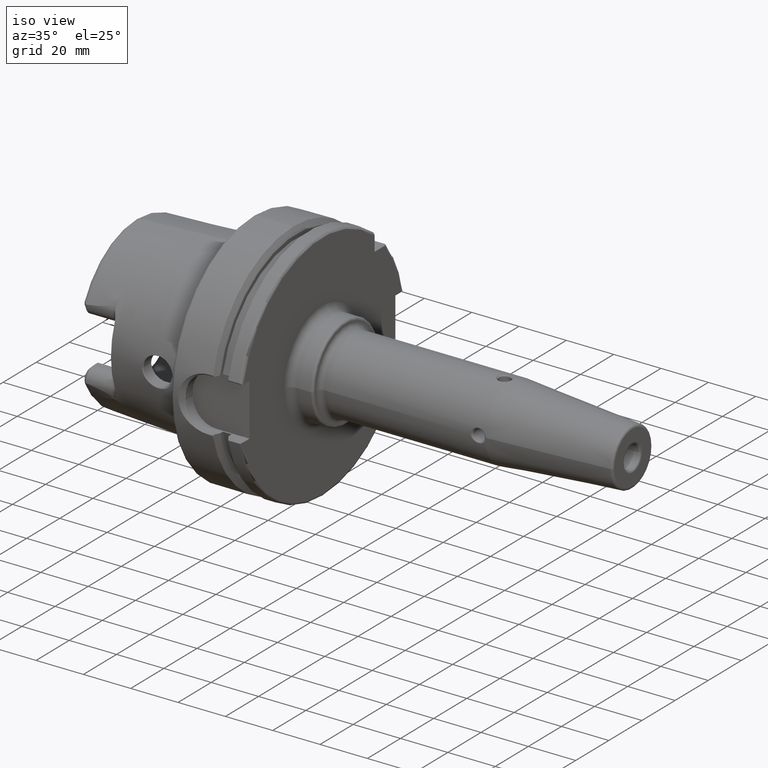
[diagram: clean part render]
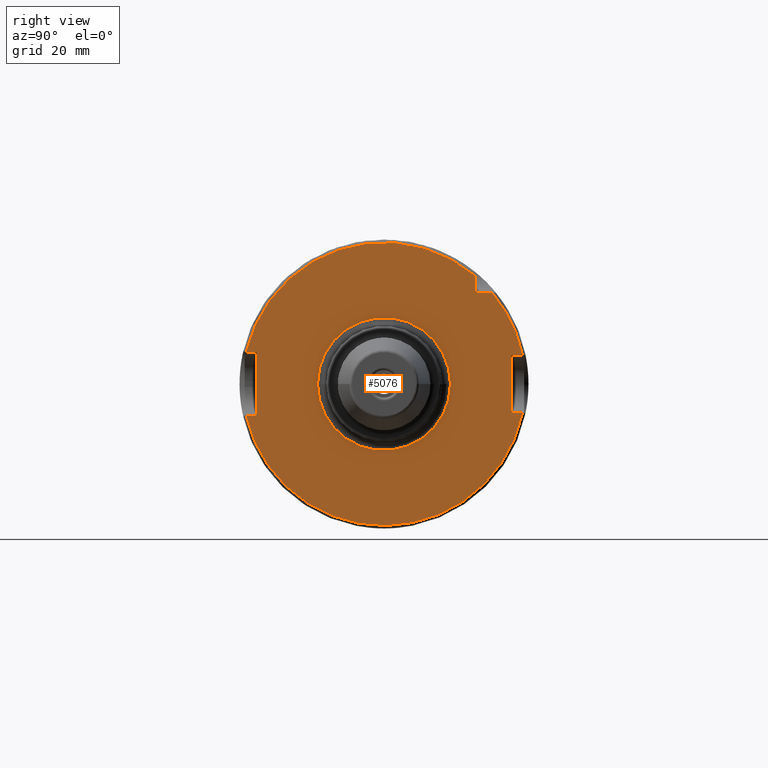
[diagram: tour spotlight — one face highlighted and labeled with its STEP entity id]
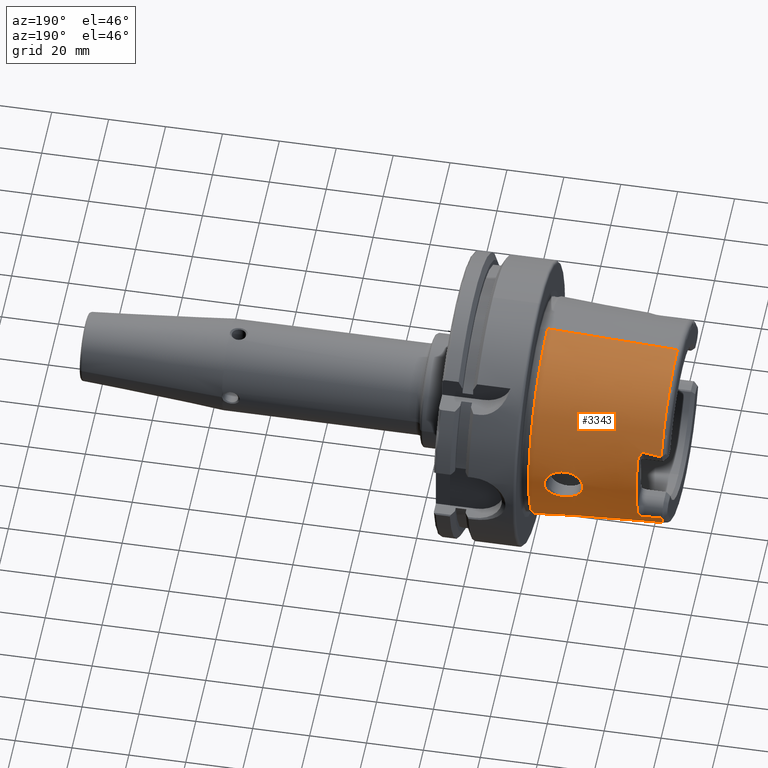
[diagram: tour spotlight — one face highlighted and labeled with its STEP entity id]
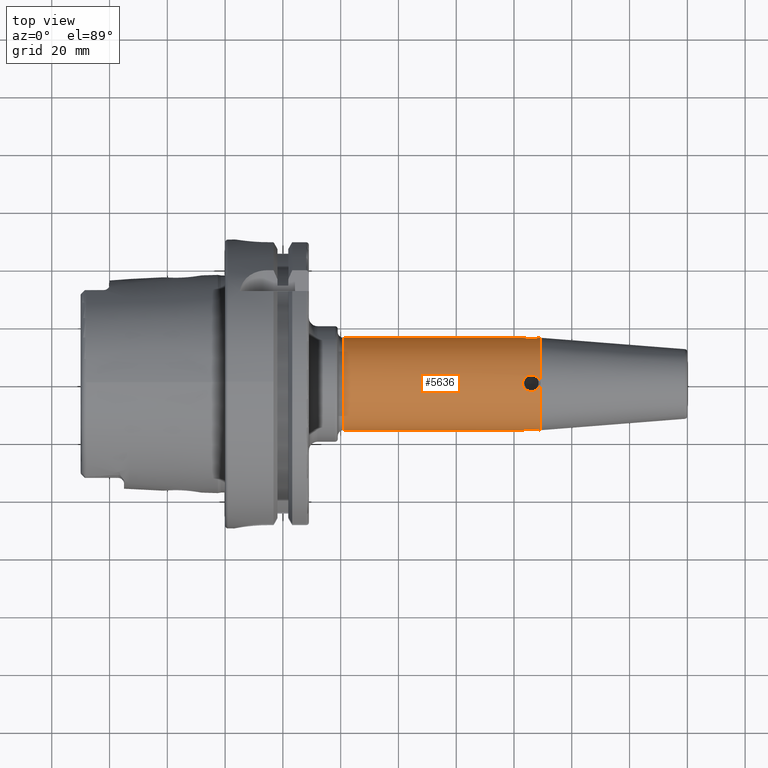
[diagram: tour spotlight — one face highlighted and labeled with its STEP entity id]
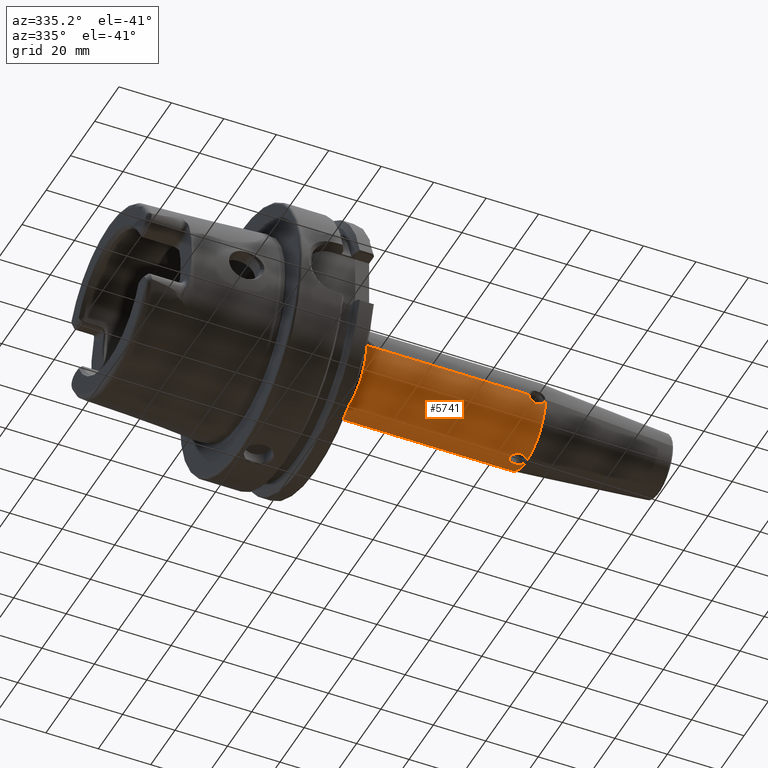
[diagram: tour spotlight — one face highlighted and labeled with its STEP entity id]
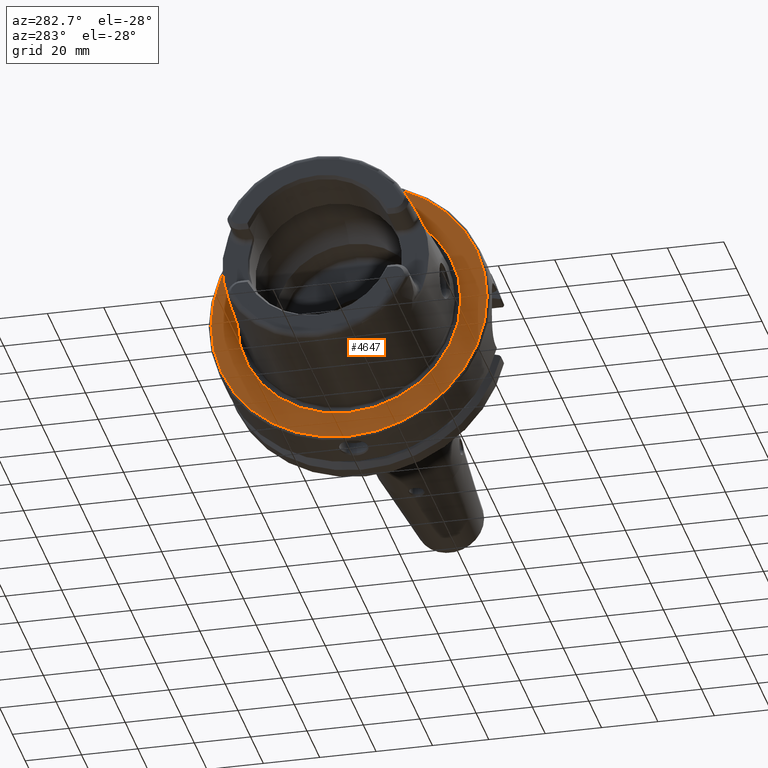
[diagram: tour spotlight — one face highlighted and labeled with its STEP entity id]
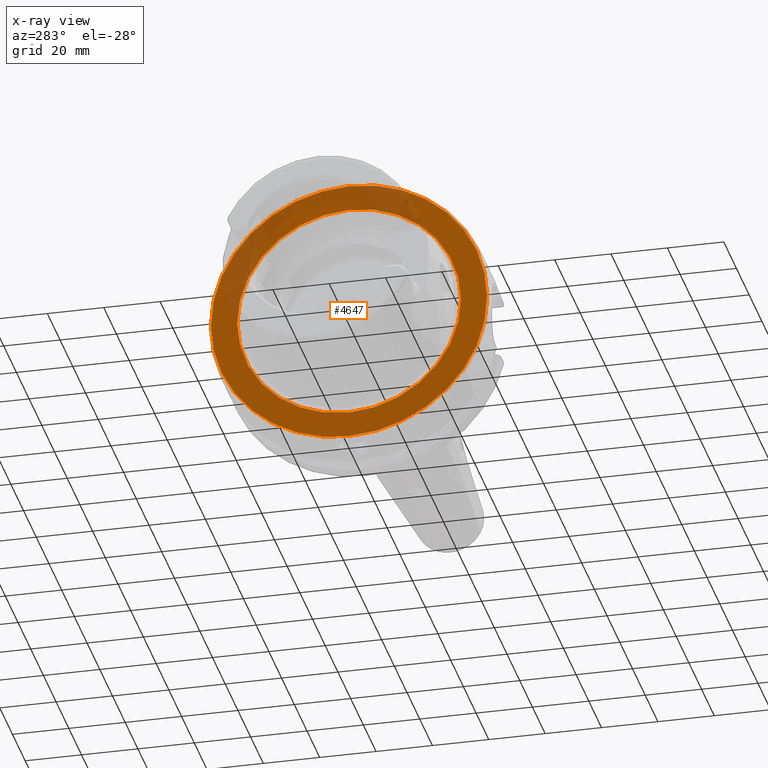
[diagram: x-ray of the same camera — body ghosted, this tour face saturated]
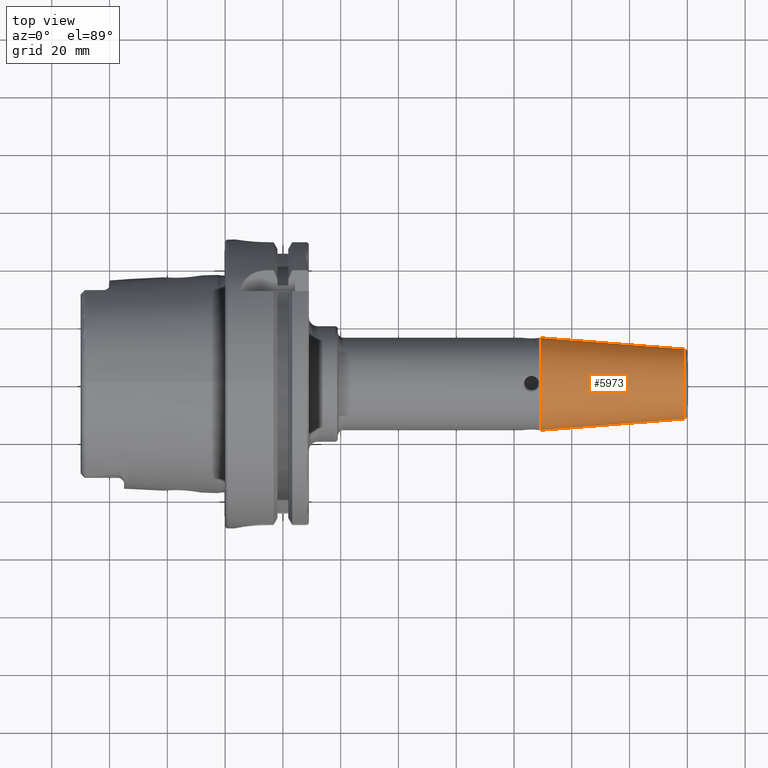
[diagram: tour spotlight — one face highlighted and labeled with its STEP entity id]
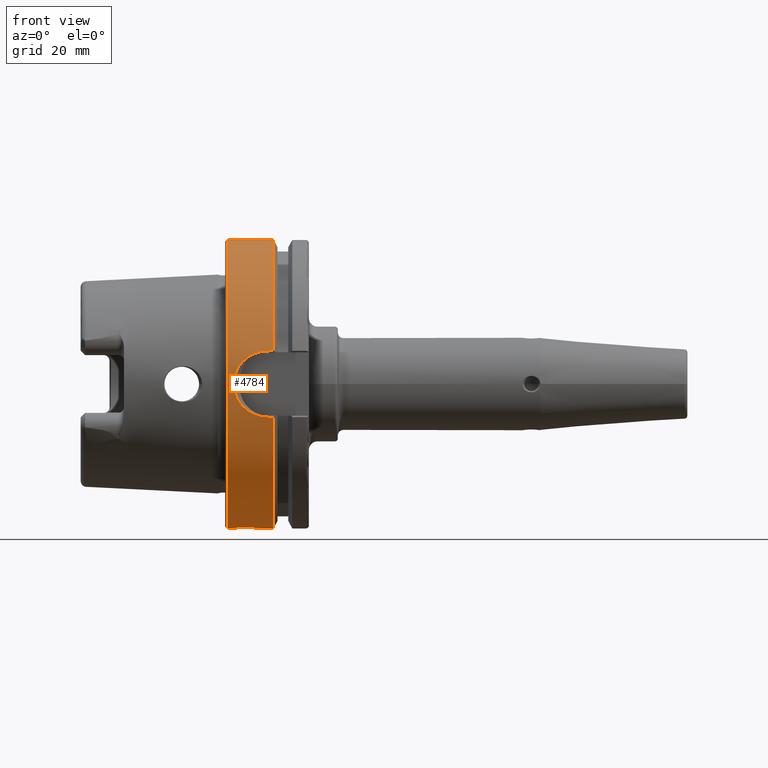
[diagram: tour spotlight — one face highlighted and labeled with its STEP entity id]
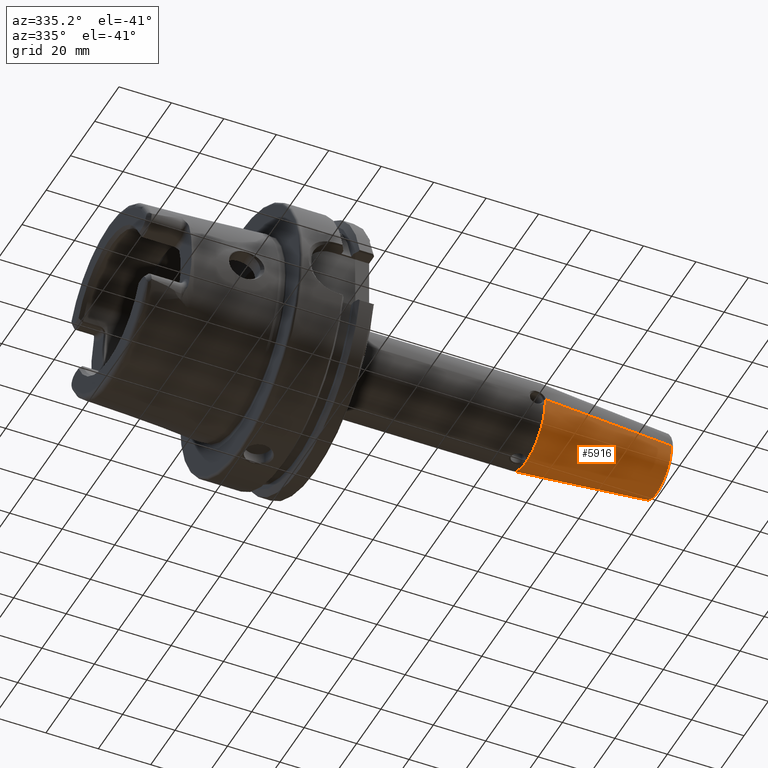
[diagram: tour spotlight — one face highlighted and labeled with its STEP entity id]
A machine part: a face-by-face anatomy tour. The part has 215 B-rep faces; the first image is the clean iso view, then the 8 largest visible faces are spotlighted one at a time (largest first), each with its STEP entity span.

Face 1 — right view, entity #5076. In plain terms, the highlighted planar face has unit normal (1, 0, 0).
Definition (entity closure, byte-faithful):
#1485=CARTESIAN_POINT('',(2.9E1,0.E0,0.E0));
#1486=DIRECTION('',(1.E0,0.E0,0.E0));
#1487=DIRECTION('',(0.E0,-9.744764396990E-1,-2.244897959184E-1));
#1488=AXIS2_PLACEMENT_3D('',#1485,#1486,#1487);
#1628=CARTESIAN_POINT('',(2.9E1,4.796873982085E1,-1.E1));
#1646=DIRECTION('',(0.E0,1.E0,0.E0));
#1647=VECTOR('',#1646,3.749345545253E0);
#1648=CARTESIAN_POINT('',(2.9E1,-4.774934554525E1,-1.1E1));
#1649=LINE('',#1648,#1647);
#1650=DIRECTION('',(0.E0,0.E0,1.E0));
#1651=VECTOR('',#1650,2.2E1);
#1652=CARTESIAN_POINT('',(2.9E1,-4.4E1,-1.1E1));
#1653=LINE('',#1652,#1651);
#1654=DIRECTION('',(0.E0,1.E0,0.E0));
#1655=VECTOR('',#1654,3.749345545253E0);
#1656=CARTESIAN_POINT('',(2.9E1,-4.774934554525E1,1.1E1));
#1657=LINE('',#1656,#1655);
#1658=DIRECTION('',(0.E0,0.E0,-1.E0));
#1659=VECTOR('',#1658,6.033318531673E0);
#1660=CARTESIAN_POINT('',(2.9E1,3.15E1,3.753331853167E1));
#1661=LINE('',#1660,#1659);
#1662=DIRECTION('',(0.E0,-1.E0,0.E0));
#1663=VECTOR('',#1662,6.033318531673E0);
#1664=CARTESIAN_POINT('',(2.9E1,3.753331853167E1,3.15E1));
#1665=LINE('',#1664,#1663);
#1666=DIRECTION('',(0.E0,-1.E0,0.E0));
#1667=VECTOR('',#1666,3.968739820846E0);
#1668=CARTESIAN_POINT('',(2.9E1,4.796873982085E1,1.E1));
#1669=LINE('',#1668,#1667);
#1670=DIRECTION('',(0.E0,0.E0,-1.E0));
#1671=VECTOR('',#1670,2.E1);
#1672=CARTESIAN_POINT('',(2.9E1,4.4E1,1.E1));
#1673=LINE('',#1672,#1671);
#1674=DIRECTION('',(0.E0,-1.E0,0.E0));
#1675=VECTOR('',#1674,3.968739820846E0);
#1676=CARTESIAN_POINT('',(2.9E1,4.796873982085E1,-1.E1));
#1677=LINE('',#1676,#1675);
#1678=CARTESIAN_POINT('',(2.9E1,0.E0,0.E0));
#1679=DIRECTION('',(1.E0,0.E0,0.E0));
#1680=DIRECTION('',(0.E0,-1.E0,0.E0));
#1681=AXIS2_PLACEMENT_3D('',#1678,#1679,#1680);
#1683=CARTESIAN_POINT('',(2.9E1,0.E0,0.E0));
#1684=DIRECTION('',(1.E0,0.E0,0.E0));
#1685=DIRECTION('',(0.E0,1.E0,0.E0));
#1686=AXIS2_PLACEMENT_3D('',#1683,#1684,#1685);
#1692=CARTESIAN_POINT('',(2.9E1,-4.774934554525E1,-1.1E1));
#1804=CARTESIAN_POINT('',(2.9E1,3.753331853167E1,3.15E1));
#1818=CARTESIAN_POINT('',(2.9E1,0.E0,0.E0));
#1819=DIRECTION('',(1.E0,0.E0,0.E0));
#1820=DIRECTION('',(0.E0,9.789538738948E-1,2.040816326531E-1));
#1821=AXIS2_PLACEMENT_3D('',#1818,#1819,#1820);
#1827=CARTESIAN_POINT('',(2.9E1,4.796873982085E1,1.E1));
#1950=CARTESIAN_POINT('',(2.9E1,3.15E1,3.753331853167E1));
#1966=CARTESIAN_POINT('',(2.9E1,0.E0,0.E0));
#1967=DIRECTION('',(1.E0,0.E0,0.E0));
#1968=DIRECTION('',(0.E0,6.428571428571E-1,7.659860924831E-1));
#1969=AXIS2_PLACEMENT_3D('',#1966,#1967,#1968);
#1971=CARTESIAN_POINT('',(2.9E1,-4.774934554525E1,1.1E1));
#2863=CARTESIAN_POINT('',(2.9E1,4.4E1,1.E1));
#2864=CARTESIAN_POINT('',(2.9E1,4.4E1,-1.E1));
#2865=VERTEX_POINT('',#2863);
#2866=VERTEX_POINT('',#2864);
#2887=CARTESIAN_POINT('',(2.9E1,-4.4E1,-1.1E1));
#2888=CARTESIAN_POINT('',(2.9E1,-4.4E1,1.1E1));
#2889=VERTEX_POINT('',#2887);
#2890=VERTEX_POINT('',#2888);
#2941=CARTESIAN_POINT('',(2.9E1,3.15E1,3.15E1));
#2943=VERTEX_POINT('',#2941);
#3168=VERTEX_POINT('',#1692);
#3169=VERTEX_POINT('',#1628);
#3174=VERTEX_POINT('',#1827);
#3175=VERTEX_POINT('',#1804);
#3178=VERTEX_POINT('',#1950);
#3179=VERTEX_POINT('',#1971);
#3266=CARTESIAN_POINT('',(2.9E1,-2.3E1,0.E0));
#3267=CARTESIAN_POINT('',(2.9E1,2.3E1,0.E0));
#3268=VERTEX_POINT('',#3266);
#3269=VERTEX_POINT('',#3267);
#5043=CARTESIAN_POINT('',(2.9E1,0.E0,0.E0));
#5044=DIRECTION('',(1.E0,0.E0,0.E0));
#5045=DIRECTION('',(0.E0,0.E0,1.E0));
#5046=AXIS2_PLACEMENT_3D('',#5043,#5044,#5045);
#5047=PLANE('',#5046);
#5048=ORIENTED_EDGE('',*,*,#4795,.F.);
#5050=ORIENTED_EDGE('',*,*,#5049,.T.);
#5052=ORIENTED_EDGE('',*,*,#5051,.T.);
#5054=ORIENTED_EDGE('',*,*,#5053,.F.);
#5056=ORIENTED_EDGE('',*,*,#5055,.F.);
#5058=ORIENTED_EDGE('',*,*,#5057,.T.);
#5060=ORIENTED_EDGE('',*,*,#5059,.F.);
#5062=ORIENTED_EDGE('',*,*,#5061,.F.);
#5064=ORIENTED_EDGE('',*,*,#5063,.T.);
#5066=ORIENTED_EDGE('',*,*,#5065,.T.);
#5067=ORIENTED_EDGE('',*,*,#5023,.F.);
#5068=EDGE_LOOP('',(#5048,#5050,#5052,#5054,#5056,#5058,#5060,#5062,#5064,#5066,
#5067));
#5069=FACE_OUTER_BOUND('',#5068,.F.);
#5071=ORIENTED_EDGE('',*,*,#5070,.T.);
#5073=ORIENTED_EDGE('',*,*,#5072,.T.);
#5074=EDGE_LOOP('',(#5071,#5073));
#5075=FACE_BOUND('',#5074,.F.);
#5076=ADVANCED_FACE('',(#5069,#5075),#5047,.T.);
#1489=CIRCLE('',#1488,4.9E1);
#1682=CIRCLE('',#1681,2.3E1);
#1687=CIRCLE('',#1686,2.3E1);
#1822=CIRCLE('',#1821,4.9E1);
#1970=CIRCLE('',#1969,4.9E1);
#4795=EDGE_CURVE('',#3168,#3169,#1489,.T.);
#5023=EDGE_CURVE('',#3169,#2866,#1677,.T.);
#5049=EDGE_CURVE('',#3168,#2889,#1649,.T.);
#5051=EDGE_CURVE('',#2889,#2890,#1653,.T.);
#5053=EDGE_CURVE('',#3179,#2890,#1657,.T.);
#5055=EDGE_CURVE('',#3178,#3179,#1970,.T.);
#5057=EDGE_CURVE('',#3178,#2943,#1661,.T.);
#5059=EDGE_CURVE('',#3175,#2943,#1665,.T.);
#5061=EDGE_CURVE('',#3174,#3175,#1822,.T.);
#5063=EDGE_CURVE('',#3174,#2865,#1669,.T.);
#5065=EDGE_CURVE('',#2865,#2866,#1673,.T.);
#5070=EDGE_CURVE('',#3268,#3269,#1682,.T.);
#5072=EDGE_CURVE('',#3269,#3268,#1687,.T.);

Face 2 — auxiliary view, entity #3343. In plain terms, the highlighted conical surface has half-angle 2.868 deg.
Definition (entity closure, byte-faithful):
#2=CARTESIAN_POINT('',(-4.810007223652E1,0.E0,0.E0));
#3=DIRECTION('',(-1.E0,0.E0,0.E0));
#4=DIRECTION('',(0.E0,9.060367502718E-1,-4.231990160161E-1));
#5=AXIS2_PLACEMENT_3D('',#2,#3,#4);
#7=CARTESIAN_POINT('',(-2.500088491128E0,4.656021286601E-9,3.787396633533E1));
#8=CARTESIAN_POINT('',(-2.500088444509E0,1.888740103895E0,3.787396633766E1));
#9=CARTESIAN_POINT('',(-2.516262056837E0,5.666079603161E0,3.759267172396E1));
#10=CARTESIAN_POINT('',(-2.509761497294E0,1.120563070156E1,3.632759442673E1));
#11=CARTESIAN_POINT('',(-2.511503316973E0,1.649483625087E1,3.425192363796E1));
#12=CARTESIAN_POINT('',(-2.511036597801E0,2.141558255922E1,3.141087897888E1));
#13=CARTESIAN_POINT('',(-2.511161654810E0,2.585793792374E1,2.786823218789E1));
#14=CARTESIAN_POINT('',(-2.511128145945E0,2.972267027537E1,2.370303773769E1));
#15=CARTESIAN_POINT('',(-2.511137124397E0,3.292344714483E1,1.900836124902E1));
#16=CARTESIAN_POINT('',(-2.511134719454E0,3.538876865595E1,1.388906812416E1));
#17=CARTESIAN_POINT('',(-2.511135360772E0,3.706356354030E1,8.459516514522E0));
#18=CARTESIAN_POINT('',(-2.511135200443E0,3.791041966799E1,2.840993193301E0));
#19=CARTESIAN_POINT('',(-2.511135200443E0,3.791041966828E1,-2.840993189549E0));
#20=CARTESIAN_POINT('',(-2.511135360772E0,3.706356354113E1,-8.459516510869E0));
#21=CARTESIAN_POINT('',(-2.511134719454E0,3.538876865733E1,-1.388906812065E1));
#22=CARTESIAN_POINT('',(-2.511137124397E0,3.292344714673E1,-1.900836124573E1));
#23=CARTESIAN_POINT('',(-2.511128145943E0,2.972267027773E1,-2.370303773475E1));
#24=CARTESIAN_POINT('',(-2.511161654817E0,2.585793792634E1,-2.786823218546E1));
#25=CARTESIAN_POINT('',(-2.511036597775E0,2.141558256255E1,-3.141087897660E1));
#26=CARTESIAN_POINT('',(-2.511503317070E0,1.649483625404E1,-3.425192363652E1));
#27=CARTESIAN_POINT('',(-2.509761496931E0,1.120563070542E1,-3.632759442522E1));
#28=CARTESIAN_POINT('',(-2.516262058192E0,5.666079609415E0,-3.759267172378E1));
#29=CARTESIAN_POINT('',(-2.500088441588E0,1.888740095305E0,-3.787396633781E1));
#30=CARTESIAN_POINT('',(-2.500088491128E0,-4.656014655163E-9,
-3.787396633533E1));
#32=CARTESIAN_POINT('',(-4.810007223652E1,0.E0,0.E0));
#33=DIRECTION('',(-1.E0,0.E0,0.E0));
#34=DIRECTION('',(0.E0,0.E0,1.E0));
#35=AXIS2_PLACEMENT_3D('',#32,#33,#34);
#37=CARTESIAN_POINT('',(-4.810007223652E1,3.224696179732E1,1.506217324853E1));
#38=CARTESIAN_POINT('',(-4.760626487230E1,3.224472931149E1,1.512541041346E1));
#39=CARTESIAN_POINT('',(-4.665467110945E1,3.223778541994E1,1.525225118060E1));
#40=CARTESIAN_POINT('',(-4.533877942039E1,3.221981223612E1,1.544334127875E1));
#41=CARTESIAN_POINT('',(-4.412438849691E1,3.219380319093E1,1.563726954796E1));
#42=CARTESIAN_POINT('',(-4.300799310316E1,3.215891702196E1,1.583594315735E1));
#43=CARTESIAN_POINT('',(-4.232535112322E1,3.212865311293E1,1.597396756315E1));
#44=CARTESIAN_POINT('',(-4.2E1,3.211131498627E1,1.604513297979E1));
#46=CARTESIAN_POINT('',(-4.810007223652E1,3.224696179732E1,-1.506217324853E1));
#47=CARTESIAN_POINT('',(-4.760626487230E1,3.224472931149E1,-1.512541041346E1));
#48=CARTESIAN_POINT('',(-4.665467110945E1,3.223778541994E1,-1.525225118060E1));
#49=CARTESIAN_POINT('',(-4.533877942039E1,3.221981223612E1,-1.544334127875E1));
#50=CARTESIAN_POINT('',(-4.412438849691E1,3.219380319093E1,-1.563726954796E1));
#51=CARTESIAN_POINT('',(-4.300799310316E1,3.215891702196E1,-1.583594315735E1));
#52=CARTESIAN_POINT('',(-4.232535112322E1,3.212865311293E1,-1.597396756315E1));
#53=CARTESIAN_POINT('',(-4.2E1,3.211131498627E1,-1.604513297979E1));
#55=CARTESIAN_POINT('',(-2.137954779159E1,3.692989749565E1,0.E0));
#56=CARTESIAN_POINT('',(-2.137954779159E1,3.692989749565E1,-4.246180398721E-1));
#57=CARTESIAN_POINT('',(-2.128673759255E1,3.692005252314E1,-1.247417540255E0));
#58=CARTESIAN_POINT('',(-2.089257896192E1,3.688069882026E1,-2.419447136204E0));
#59=CARTESIAN_POINT('',(-2.027140056178E1,3.682597982695E1,-3.478413643194E0));
#60=CARTESIAN_POINT('',(-1.944186493855E1,3.676680671763E1,-4.409426948877E0));
#61=CARTESIAN_POINT('',(-1.842522739439E1,3.671629731471E1,-5.180163247037E0));
#62=CARTESIAN_POINT('',(-1.727293268232E1,3.668869696822E1,-5.749933901282E0));
#63=CARTESIAN_POINT('',(-1.604202236343E1,3.669409444634E1,-6.098969553285E0));
#64=CARTESIAN_POINT('',(-1.478114529082E1,3.673668125440E1,-6.225459200452E0));
#65=CARTESIAN_POINT('',(-1.351368939889E1,3.681704995945E1,-6.131520620636E0));
#66=CARTESIAN_POINT('',(-1.227262885671E1,3.693163859941E1,-5.817454357494E0));
#67=CARTESIAN_POINT('',(-1.107249846882E1,3.707620169114E1,-5.265601784631E0));
#68=CARTESIAN_POINT('',(-1.002347757320E1,3.722937675954E1,-4.514191614884E0));
#69=CARTESIAN_POINT('',(-9.154062426226E0,3.737449989776E1,-3.592660499843E0));
#70=CARTESIAN_POINT('',(-8.493920875559E0,3.749554337078E1,-2.535977316170E0));
#71=CARTESIAN_POINT('',(-8.055645954015E0,3.758102186138E1,-1.328261323789E0));
#72=CARTESIAN_POINT('',(-7.947522918154E0,3.760282678591E1,-4.555279431384E-1));
#73=CARTESIAN_POINT('',(-7.947522918154E0,3.760282678591E1,0.E0));
#75=CARTESIAN_POINT('',(-7.947522918154E0,3.760282678591E1,0.E0));
#76=CARTESIAN_POINT('',(-7.947522918154E0,3.760282678591E1,4.525935065173E-1));
#77=CARTESIAN_POINT('',(-8.054353449232E0,3.758128529051E1,1.320489248427E0));
#78=CARTESIAN_POINT('',(-8.487811605258E0,3.749671550305E1,2.522725444672E0));
#79=CARTESIAN_POINT('',(-9.144050264540E0,3.737626870893E1,3.579704531497E0));
#80=CARTESIAN_POINT('',(-1.001221387362E1,3.723113002214E1,4.504703122384E0));
#81=CARTESIAN_POINT('',(-1.106396004156E1,3.707731463883E1,5.260972209848E0));
#82=CARTESIAN_POINT('',(-1.226599748901E1,3.693233575334E1,5.815196264754E0));
#83=CARTESIAN_POINT('',(-1.350734652814E1,3.681754199427E1,6.130514483551E0));
#84=CARTESIAN_POINT('',(-1.477530650034E1,3.673696189276E1,6.225552715395E0));
#85=CARTESIAN_POINT('',(-1.603647877800E1,3.669419499847E1,6.100048657137E0));
#86=CARTESIAN_POINT('',(-1.726817548153E1,3.668864831222E1,5.751758224998E0));
#87=CARTESIAN_POINT('',(-1.842020004496E1,3.671611716092E1,5.183185429671E0));
#88=CARTESIAN_POINT('',(-1.943667950899E1,3.676649519479E1,4.414066375196E0));
#89=CARTESIAN_POINT('',(-2.026648949031E1,3.682558390667E1,3.485091488706E0));
#90=CARTESIAN_POINT('',(-2.088971303776E1,3.688042119238E1,2.426051736291E0));
#91=CARTESIAN_POINT('',(-2.128601042917E1,3.691997491793E1,1.251796355923E0));
#92=CARTESIAN_POINT('',(-2.137954779159E1,3.692989749565E1,4.262940102684E-1));
#93=CARTESIAN_POINT('',(-2.137954779159E1,3.692989749565E1,0.E0));
#178=CARTESIAN_POINT('',(-4.2E1,3.211131498627E1,-1.604513297979E1));
#179=CARTESIAN_POINT('',(-4.192998820414E1,3.210758402209E1,-1.606044695373E1));
#180=CARTESIAN_POINT('',(-4.179094380341E1,3.211456335701E1,-1.606207905721E1));
#181=CARTESIAN_POINT('',(-4.157898084651E1,3.217127452582E1,-1.597226834239E1));
#182=CARTESIAN_POINT('',(-4.138679375422E1,3.225597308016E1,-1.582258405135E1));
#183=CARTESIAN_POINT('',(-4.120547603417E1,3.235740712436E1,-1.563514640436E1));
#184=CARTESIAN_POINT('',(-4.103216334847E1,3.247070431858E1,-1.541888386408E1));
#185=CARTESIAN_POINT('',(-4.086240492233E1,3.259538571334E1,-1.517388279377E1));
#186=CARTESIAN_POINT('',(-4.069645020463E1,3.273072925297E1,-1.489996245237E1));
#187=CARTESIAN_POINT('',(-4.053769214860E1,3.287455034217E1,-1.459973425269E1));
#188=CARTESIAN_POINT('',(-4.038595883988E1,3.302932533535E1,-1.426564690993E1));
#189=CARTESIAN_POINT('',(-4.024440268E1,3.319735372991E1,-1.388900306311E1));
#190=CARTESIAN_POINT('',(-4.012052851809E1,3.338005349092E1,-1.346123760045E1));
#191=CARTESIAN_POINT('',(-4.002756728480E1,3.357744289008E1,-1.297480157245E1));
#192=CARTESIAN_POINT('',(-4.000000000001E1,3.371753099212E1,-1.260782905975E1));
#193=CARTESIAN_POINT('',(-4.E1,3.378887757491E1,-1.241362953540E1));
#209=CARTESIAN_POINT('',(-4.E1,0.E0,0.E0));
#210=DIRECTION('',(1.E0,0.E0,0.E0));
#211=DIRECTION('',(0.E0,9.386572714716E-1,-3.448514560120E-1));
#212=AXIS2_PLACEMENT_3D('',#209,#210,#211);
#635=DIRECTION('',(-9.987493463681E-1,-1.021037123262E-10,-4.999743122625E-2));
#636=VECTOR('',#635,4.565708494450E1);
#637=CARTESIAN_POINT('',(-2.500088491128E0,4.656021286601E-9,3.787396633533E1));
#638=LINE('',#637,#636);
#639=CARTESIAN_POINT('',(-2.500088491128E0,-4.656014655163E-9,
-3.787396633533E1));
#662=CARTESIAN_POINT('',(-2.500088491128E0,4.656021286601E-9,3.787396633533E1));
#664=DIRECTION('',(-9.987493463681E-1,1.021044836784E-10,4.999743122625E-2));
#665=VECTOR('',#664,4.565708494450E1);
#666=CARTESIAN_POINT('',(-2.500088491128E0,-4.656014655163E-9,
-3.787396633533E1));
#667=LINE('',#666,#665);
#1169=CARTESIAN_POINT('',(-4.E1,3.378887757491E1,1.241362953540E1));
#1170=CARTESIAN_POINT('',(-4.E1,3.372146355514E1,1.259712494698E1));
#1171=CARTESIAN_POINT('',(-4.002461321078E1,3.358718522381E1,1.294984660589E1));
#1172=CARTESIAN_POINT('',(-4.011492265392E1,3.338929117470E1,1.343921019691E1));
#1173=CARTESIAN_POINT('',(-4.024180767753E1,3.320009180081E1,1.388304100042E1));
#1174=CARTESIAN_POINT('',(-4.039267953825E1,3.302139422602E1,1.428339912804E1));
#1175=CARTESIAN_POINT('',(-4.055645970713E1,3.285632342277E1,1.463854358776E1));
#1176=CARTESIAN_POINT('',(-4.072395055112E1,3.270719923388E1,1.494824966393E1));
#1177=CARTESIAN_POINT('',(-4.089191642684E1,3.257279273580E1,1.521877239326E1));
#1178=CARTESIAN_POINT('',(-4.105913829846E1,3.245218730803E1,1.545463287979E1));
#1179=CARTESIAN_POINT('',(-4.123235050054E1,3.234121890838E1,1.566547892019E1));
#1180=CARTESIAN_POINT('',(-4.140908389693E1,3.224539664296E1,1.584152574741E1));
#1181=CARTESIAN_POINT('',(-4.158707923877E1,3.216887581640E1,1.597615547539E1));
#1182=CARTESIAN_POINT('',(-4.179594520284E1,3.211397864099E1,1.606269068128E1));
#1183=CARTESIAN_POINT('',(-4.193142421856E1,3.210766054803E1,1.606013284827E1));
#1184=CARTESIAN_POINT('',(-4.2E1,3.211131498627E1,1.604513297979E1));
#2853=VERTEX_POINT('',#639);
#2854=VERTEX_POINT('',#662);
#2974=CARTESIAN_POINT('',(-4.E1,3.378887757493E1,-1.241362953536E1));
#2976=VERTEX_POINT('',#2974);
#2978=CARTESIAN_POINT('',(-4.2E1,3.211131498627E1,-1.604513297979E1));
#2980=VERTEX_POINT('',#2978);
#2982=CARTESIAN_POINT('',(-4.2E1,3.211131498627E1,1.604513297979E1));
#2984=VERTEX_POINT('',#2982);
#2986=CARTESIAN_POINT('',(-4.E1,3.378887757493E1,1.241362953536E1));
#2988=VERTEX_POINT('',#2986);
#3022=CARTESIAN_POINT('',(-4.810007223652E1,0.E0,-3.559122937082E1));
#3024=VERTEX_POINT('',#3022);
#3026=CARTESIAN_POINT('',(-4.810007223652E1,3.224696179732E1,
-1.506217324853E1));
#3027=VERTEX_POINT('',#3026);
#3028=CARTESIAN_POINT('',(-4.810007223652E1,0.E0,3.559122937082E1));
#3029=CARTESIAN_POINT('',(-4.810007223652E1,3.224696179732E1,1.506217324853E1));
#3030=VERTEX_POINT('',#3028);
#3031=VERTEX_POINT('',#3029);
#3106=VERTEX_POINT('',#55);
#3107=VERTEX_POINT('',#73);
#3310=CARTESIAN_POINT('',(-2.530012460967E1,0.E0,0.E0));
#3311=DIRECTION('',(1.E0,0.E0,0.E0));
#3312=DIRECTION('',(0.E0,0.E0,1.E0));
#3313=AXIS2_PLACEMENT_3D('',#3310,#3311,#3312);
#3314=CONICAL_SURFACE('',#3313,3.673348102081E1,2.868056E0);
#3316=ORIENTED_EDGE('',*,*,#3315,.T.);
#3318=ORIENTED_EDGE('',*,*,#3317,.F.);
#3320=ORIENTED_EDGE('',*,*,#3319,.F.);
#3322=ORIENTED_EDGE('',*,*,#3321,.T.);
#3324=ORIENTED_EDGE('',*,*,#3323,.T.);
#3326=ORIENTED_EDGE('',*,*,#3325,.T.);
#3328=ORIENTED_EDGE('',*,*,#3327,.F.);
#3330=ORIENTED_EDGE('',*,*,#3329,.F.);
#3332=ORIENTED_EDGE('',*,*,#3331,.F.);
#3334=ORIENTED_EDGE('',*,*,#3333,.F.);
#3335=EDGE_LOOP('',(#3316,#3318,#3320,#3322,#3324,#3326,#3328,#3330,#3332,
#3334));
#3336=FACE_OUTER_BOUND('',#3335,.F.);
#3338=ORIENTED_EDGE('',*,*,#3337,.F.);
#3340=ORIENTED_EDGE('',*,*,#3339,.F.);
#3341=EDGE_LOOP('',(#3338,#3340));
#3342=FACE_BOUND('',#3341,.F.);
#3343=ADVANCED_FACE('',(#3336,#3342),#3314,.T.);
#6=CIRCLE('',#5,3.559122937082E1);
#31=B_SPLINE_CURVE_WITH_KNOTS('',3,(#7,#8,#9,#10,#11,#12,#13,#14,#15,#16,#17,
#18,#19,#20,#21,#22,#23,#24,#25,#26,#27,#28,#29,#30),.UNSPECIFIED.,.F.,.F.,(4,1,
1,1,1,1,1,1,1,1,1,1,1,1,1,1,1,1,1,1,1,4),(0.E0,4.761904761905E-2,
9.523809523810E-2,1.428571428571E-1,1.904761904762E-1,2.380952380952E-1,
2.857142857143E-1,3.333333333333E-1,3.809523809524E-1,4.285714285714E-1,
4.761904761905E-1,5.238095238095E-1,5.714285714286E-1,6.190476190476E-1,
6.666666666667E-1,7.142857142857E-1,7.619047619048E-1,8.095238095238E-1,
8.571428571429E-1,9.047619047619E-1,9.523809523810E-1,1.E0),.UNSPECIFIED.);
#36=CIRCLE('',#35,3.559122937082E1);
#45=B_SPLINE_CURVE_WITH_KNOTS('',3,(#37,#38,#39,#40,#41,#42,#43,#44),
.UNSPECIFIED.,.F.,.F.,(4,1,1,1,1,4),(0.E0,2.E-1,4.E-1,6.E-1,8.E-1,1.E0),
.UNSPECIFIED.);
#54=B_SPLINE_CURVE_WITH_KNOTS('',3,(#46,#47,#48,#49,#50,#51,#52,#53),
.UNSPECIFIED.,.F.,.F.,(4,1,1,1,1,4),(0.E0,2.E-1,4.E-1,6.E-1,8.E-1,1.E0),
.UNSPECIFIED.);
#74=B_SPLINE_CURVE_WITH_KNOTS('',3,(#55,#56,#57,#58,#59,#60,#61,#62,#63,#64,#65,
#66,#67,#68,#69,#70,#71,#72,#73),.UNSPECIFIED.,.F.,.F.,(4,1,1,1,1,1,1,1,1,1,1,1,
1,1,1,1,4),(0.E0,6.25E-2,1.25E-1,1.875E-1,2.5E-1,3.125E-1,3.75E-1,4.375E-1,
5.E-1,5.625E-1,6.25E-1,6.875E-1,7.5E-1,8.125E-1,8.75E-1,9.375E-1,1.E0),
.UNSPECIFIED.);
#94=B_SPLINE_CURVE_WITH_KNOTS('',3,(#75,#76,#77,#78,#79,#80,#81,#82,#83,#84,#85,
#86,#87,#88,#89,#90,#91,#92,#93),.UNSPECIFIED.,.F.,.F.,(4,1,1,1,1,1,1,1,1,1,1,1,
1,1,1,1,4),(0.E0,6.25E-2,1.25E-1,1.875E-1,2.5E-1,3.125E-1,3.75E-1,4.375E-1,
5.E-1,5.625E-1,6.25E-1,6.875E-1,7.5E-1,8.125E-1,8.75E-1,9.375E-1,1.E0),
.UNSPECIFIED.);
#194=B_SPLINE_CURVE_WITH_KNOTS('',3,(#178,#179,#180,#181,#182,#183,#184,#185,
#186,#187,#188,#189,#190,#191,#192,#193),.UNSPECIFIED.,.F.,.F.,(4,1,1,1,1,1,1,1,
1,1,1,1,1,4),(0.E0,7.692307692308E-2,1.538461538462E-1,2.307692307692E-1,
3.076923076923E-1,3.846153846154E-1,4.615384615385E-1,5.384615384615E-1,
6.153846153846E-1,6.923076923077E-1,7.692307692308E-1,8.461538461538E-1,
9.230769230769E-1,1.E0),.UNSPECIFIED.);
#213=CIRCLE('',#212,3.599703385023E1);
#1185=B_SPLINE_CURVE_WITH_KNOTS('',3,(#1169,#1170,#1171,#1172,#1173,#1174,#1175,
#1176,#1177,#1178,#1179,#1180,#1181,#1182,#1183,#1184),.UNSPECIFIED.,.F.,.F.,(4,
1,1,1,1,1,1,1,1,1,1,1,1,4),(0.E0,7.692307692308E-2,1.538461538462E-1,
2.307692307692E-1,3.076923076923E-1,3.846153846154E-1,4.615384615385E-1,
5.384615384615E-1,6.153846153846E-1,6.923076923077E-1,7.692307692308E-1,
8.461538461538E-1,9.230769230769E-1,1.E0),.UNSPECIFIED.);
#3315=EDGE_CURVE('',#3027,#3024,#6,.T.);
#3317=EDGE_CURVE('',#2853,#3024,#667,.T.);
#3319=EDGE_CURVE('',#2854,#2853,#31,.T.);
#3321=EDGE_CURVE('',#2854,#3030,#638,.T.);
#3323=EDGE_CURVE('',#3030,#3031,#36,.T.);
#3325=EDGE_CURVE('',#3031,#2984,#45,.T.);
#3327=EDGE_CURVE('',#2988,#2984,#1185,.T.);
#3329=EDGE_CURVE('',#2976,#2988,#213,.T.);
#3331=EDGE_CURVE('',#2980,#2976,#194,.T.);
#3333=EDGE_CURVE('',#3027,#2980,#54,.T.);
#3337=EDGE_CURVE('',#3106,#3107,#74,.T.);
#3339=EDGE_CURVE('',#3107,#3106,#94,.T.);

Face 3 — top view, entity #5636. In plain terms, the highlighted cylindrical surface (partial cylindrical patch) has radius 16 mm, axis along (1, 0, 0).
Definition (entity closure, byte-faithful):
#2141=CARTESIAN_POINT('',(1.029E2,0.E0,1.6E1));
#2142=CARTESIAN_POINT('',(1.029E2,2.982309595908E-1,1.6E1));
#2143=CARTESIAN_POINT('',(1.029973388571E2,8.576806048207E-1,1.598382719863E1));
#2144=CARTESIAN_POINT('',(1.034023522809E2,1.619080737804E0,1.592272103413E1));
#2145=CARTESIAN_POINT('',(1.039766319856E2,2.198274855867E0,1.585086465513E1));
#2146=CARTESIAN_POINT('',(1.047002949228E2,2.622363652437E0,1.578481165322E1));
#2147=CARTESIAN_POINT('',(1.055434532237E2,2.852512399435E0,1.574373106289E1));
#2148=CARTESIAN_POINT('',(1.064268406435E2,2.856070217744E0,1.574306366302E1));
#2149=CARTESIAN_POINT('',(1.072662612206E2,2.635469441959E0,1.578256120481E1));
#2150=CARTESIAN_POINT('',(1.079904854695E2,2.223059013396E0,1.584724968932E1));
#2151=CARTESIAN_POINT('',(1.085819061659E2,1.645205032659E0,1.592036623679E1));
#2152=CARTESIAN_POINT('',(1.090074066524E2,8.510923511699E-1,1.598453850373E1));
#2153=CARTESIAN_POINT('',(1.091E2,2.944874872667E-1,1.6E1));
#2154=CARTESIAN_POINT('',(1.091E2,0.E0,1.6E1));
#2156=CARTESIAN_POINT('',(1.091E2,0.E0,1.6E1));
#2157=CARTESIAN_POINT('',(1.091E2,-3.003790462001E-1,1.6E1));
#2158=CARTESIAN_POINT('',(1.090012288165E2,-8.633266450043E-1,
1.598358601453E1));
#2159=CARTESIAN_POINT('',(1.085920427817E2,-1.627185321188E0,1.592191655172E1));
#2160=CARTESIAN_POINT('',(1.080124582304E2,-2.207296002014E0,1.584961349210E1));
#2161=CARTESIAN_POINT('',(1.072809687114E2,-2.630640664575E0,1.578341578421E1));
#2162=CARTESIAN_POINT('',(1.064310792070E2,-2.856477763301E0,1.574299278399E1));
#2163=CARTESIAN_POINT('',(1.055396284921E2,-2.852182992471E0,1.574379133286E1));
#2164=CARTESIAN_POINT('',(1.046994256488E2,-2.621655708708E0,1.578493059362E1));
#2165=CARTESIAN_POINT('',(1.039770449836E2,-2.198557072922E0,1.585080084715E1));
#2166=CARTESIAN_POINT('',(1.033996172503E2,-1.617145555513E0,1.592306483577E1));
#2167=CARTESIAN_POINT('',(1.029925581022E2,-8.442970543050E-1,
1.598459328545E1));
#2168=CARTESIAN_POINT('',(1.029E2,-2.923847620478E-1,1.6E1));
#2169=CARTESIAN_POINT('',(1.029E2,0.E0,1.6E1));
#2171=CARTESIAN_POINT('',(4.1E1,0.E0,0.E0));
#2172=DIRECTION('',(1.E0,0.E0,0.E0));
#2173=DIRECTION('',(0.E0,1.E0,0.E0));
#2174=AXIS2_PLACEMENT_3D('',#2171,#2172,#2173);
#2176=CARTESIAN_POINT('',(1.091E2,1.6E1,0.E0));
#2177=CARTESIAN_POINT('',(1.091E2,1.6E1,2.675299595442E-1));
#2178=CARTESIAN_POINT('',(1.090226505910E2,1.598715781641E1,7.769275147837E-1));
#2179=CARTESIAN_POINT('',(1.086701732400E2,1.593327827632E1,1.508502750041E0));
#2180=CARTESIAN_POINT('',(1.081701241096E2,1.586815925339E1,2.068927287195E0));
#2181=CARTESIAN_POINT('',(1.075460895806E2,1.580490844939E1,2.499885255282E0));
#2182=CARTESIAN_POINT('',(1.067982291428E2,1.575662844028E1,2.781976533252E0));
#2183=CARTESIAN_POINT('',(1.059931443107E2,1.573902278502E1,2.877690529657E0));
#2184=CARTESIAN_POINT('',(1.051852723612E2,1.575744237509E1,2.777366799148E0));
#2185=CARTESIAN_POINT('',(1.044516016153E2,1.580515594221E1,2.498239346533E0));
#2186=CARTESIAN_POINT('',(1.038189181887E2,1.586935199478E1,2.060969501283E0));
#2187=CARTESIAN_POINT('',(1.033243566612E2,1.593416041291E1,1.496158958852E0));
#2188=CARTESIAN_POINT('',(1.029850240474E2,1.598594985815E1,7.963592082745E-1));
#2189=CARTESIAN_POINT('',(1.029E2,1.6E1,2.762801933714E-1));
#2190=CARTESIAN_POINT('',(1.029E2,1.6E1,0.E0));
#2192=CARTESIAN_POINT('',(1.091751810553E2,0.E0,0.E0));
#2193=DIRECTION('',(-1.E0,0.E0,0.E0));
#2194=DIRECTION('',(0.E0,-1.E0,0.E0));
#2195=AXIS2_PLACEMENT_3D('',#2192,#2193,#2194);
#2197=CARTESIAN_POINT('',(1.029E2,-1.6E1,0.E0));
#2198=CARTESIAN_POINT('',(1.029E2,-1.6E1,2.733132193404E-1));
#2199=CARTESIAN_POINT('',(1.029835979487E2,-1.598620541182E1,
7.882628615411E-1));
#2200=CARTESIAN_POINT('',(1.033138204750E2,-1.593569420681E1,1.479120455994E0));
#2201=CARTESIAN_POINT('',(1.038017894263E2,-1.587145816866E1,2.044872097304E0));
#2202=CARTESIAN_POINT('',(1.044240573661E2,-1.580745726331E1,2.483902375798E0));
#2203=CARTESIAN_POINT('',(1.051638217662E2,-1.575840125620E1,2.772128400308E0));
#2204=CARTESIAN_POINT('',(1.059629755544E2,-1.573916047059E1,2.876944585342E0));
#2205=CARTESIAN_POINT('',(1.067650006797E2,-1.575532570400E1,2.789053705532E0));
#2206=CARTESIAN_POINT('',(1.075051068118E2,-1.580152537536E1,2.520701178352E0));
#2207=CARTESIAN_POINT('',(1.081434720960E2,-1.586497146586E1,2.093238140406E0));
#2208=CARTESIAN_POINT('',(1.086489828296E2,-1.593027586920E1,1.537866904473E0));
#2209=CARTESIAN_POINT('',(1.090110327344E2,-1.598525456034E1,
8.173567568697E-1));
#2210=CARTESIAN_POINT('',(1.091E2,-1.6E1,2.842992559846E-1));
#2211=CARTESIAN_POINT('',(1.091E2,-1.6E1,0.E0));
#2292=DIRECTION('',(-1.E0,0.E0,-1.344908239011E-11));
#2293=VECTOR('',#2292,6.19E1);
#2294=CARTESIAN_POINT('',(1.029E2,-1.6E1,0.E0));
#2295=LINE('',#2294,#2293);
#2312=DIRECTION('',(-1.E0,-3.399556177137E-10,-5.596765367343E-9));
#2313=VECTOR('',#2312,7.518105562478E-2);
#2314=CARTESIAN_POINT('',(1.091751810556E2,-1.599999999997E1,
4.207699938754E-10));
#2315=LINE('',#2314,#2313);
#2321=DIRECTION('',(-1.E0,3.399556177137E-10,5.596822399850E-9));
#2322=VECTOR('',#2321,7.518105562478E-2);
#2323=CARTESIAN_POINT('',(1.091751810556E2,1.599999999997E1,
-4.207740364477E-10));
#2324=LINE('',#2323,#2322);
#2341=DIRECTION('',(-1.E0,0.E0,1.344907155487E-11));
#2342=VECTOR('',#2341,6.19E1);
#2343=CARTESIAN_POINT('',(1.029E2,1.6E1,0.E0));
#2344=LINE('',#2343,#2342);
#3182=CARTESIAN_POINT('',(1.091751810553E2,1.6E1,0.E0));
#3183=CARTESIAN_POINT('',(1.091751810553E2,-1.6E1,0.E0));
#3184=VERTEX_POINT('',#3182);
#3185=VERTEX_POINT('',#3183);
#3228=VERTEX_POINT('',#2176);
#3229=VERTEX_POINT('',#2190);
#3240=VERTEX_POINT('',#2141);
#3241=VERTEX_POINT('',#2154);
#3252=VERTEX_POINT('',#2197);
#3253=VERTEX_POINT('',#2211);
#3278=CARTESIAN_POINT('',(4.1E1,-1.6E1,0.E0));
#3279=CARTESIAN_POINT('',(4.1E1,1.6E1,0.E0));
#3280=VERTEX_POINT('',#3278);
#3281=VERTEX_POINT('',#3279);
#5608=CARTESIAN_POINT('',(0.E0,0.E0,0.E0));
#5609=DIRECTION('',(1.E0,0.E0,0.E0));
#5610=DIRECTION('',(0.E0,-1.E0,0.E0));
#5611=AXIS2_PLACEMENT_3D('',#5608,#5609,#5610);
#5612=CYLINDRICAL_SURFACE('',#5611,1.6E1);
#5613=ORIENTED_EDGE('',*,*,#5600,.F.);
#5615=ORIENTED_EDGE('',*,*,#5614,.F.);
#5617=ORIENTED_EDGE('',*,*,#5616,.F.);
#5619=ORIENTED_EDGE('',*,*,#5618,.F.);
#5621=ORIENTED_EDGE('',*,*,#5620,.F.);
#5623=ORIENTED_EDGE('',*,*,#5622,.T.);
#5625=ORIENTED_EDGE('',*,*,#5624,.F.);
#5627=ORIENTED_EDGE('',*,*,#5626,.T.);
#5628=EDGE_LOOP('',(#5613,#5615,#5617,#5619,#5621,#5623,#5625,#5627));
#5629=FACE_OUTER_BOUND('',#5628,.F.);
#5631=ORIENTED_EDGE('',*,*,#5630,.F.);
#5633=ORIENTED_EDGE('',*,*,#5632,.F.);
#5634=EDGE_LOOP('',(#5631,#5633));
#5635=FACE_BOUND('',#5634,.F.);
#5636=ADVANCED_FACE('',(#5629,#5635),#5612,.T.);
#2155=B_SPLINE_CURVE_WITH_KNOTS('',3,(#2141,#2142,#2143,#2144,#2145,#2146,#2147,
#2148,#2149,#2150,#2151,#2152,#2153,#2154),.UNSPECIFIED.,.F.,.F.,(4,1,1,1,1,1,1,
1,1,1,1,4),(0.E0,9.090909090909E-2,1.818181818182E-1,2.727272727273E-1,
3.636363636364E-1,4.545454545455E-1,5.454545454545E-1,6.363636363636E-1,
7.272727272727E-1,8.181818181818E-1,9.090909090909E-1,1.E0),.UNSPECIFIED.);
#2170=B_SPLINE_CURVE_WITH_KNOTS('',3,(#2156,#2157,#2158,#2159,#2160,#2161,#2162,
#2163,#2164,#2165,#2166,#2167,#2168,#2169),.UNSPECIFIED.,.F.,.F.,(4,1,1,1,1,1,1,
1,1,1,1,4),(0.E0,9.090909090909E-2,1.818181818182E-1,2.727272727273E-1,
3.636363636364E-1,4.545454545455E-1,5.454545454545E-1,6.363636363636E-1,
7.272727272727E-1,8.181818181818E-1,9.090909090909E-1,1.E0),.UNSPECIFIED.);
#2175=CIRCLE('',#2174,1.6E1);
#2191=B_SPLINE_CURVE_WITH_KNOTS('',3,(#2176,#2177,#2178,#2179,#2180,#2181,#2182,
#2183,#2184,#2185,#2186,#2187,#2188,#2189,#2190),.UNSPECIFIED.,.F.,.F.,(4,1,1,1,
1,1,1,1,1,1,1,1,4),(0.E0,8.333333333333E-2,1.666666666667E-1,2.5E-1,
3.333333333333E-1,4.166666666667E-1,5.E-1,5.833333333333E-1,6.666666666667E-1,
7.5E-1,8.333333333333E-1,9.166666666667E-1,1.E0),.UNSPECIFIED.);
#2196=CIRCLE('',#2195,1.6E1);
#2212=B_SPLINE_CURVE_WITH_KNOTS('',3,(#2197,#2198,#2199,#2200,#2201,#2202,#2203,
#2204,#2205,#2206,#2207,#2208,#2209,#2210,#2211),.UNSPECIFIED.,.F.,.F.,(4,1,1,1,
1,1,1,1,1,1,1,1,4),(0.E0,8.333333333333E-2,1.666666666667E-1,2.5E-1,
3.333333333333E-1,4.166666666667E-1,5.E-1,5.833333333333E-1,6.666666666667E-1,
7.5E-1,8.333333333333E-1,9.166666666667E-1,1.E0),.UNSPECIFIED.);
#5600=EDGE_CURVE('',#3281,#3280,#2175,.T.);
#5614=EDGE_CURVE('',#3229,#3281,#2344,.T.);
#5616=EDGE_CURVE('',#3228,#3229,#2191,.T.);
#5618=EDGE_CURVE('',#3184,#3228,#2324,.T.);
#5620=EDGE_CURVE('',#3185,#3184,#2196,.T.);
#5622=EDGE_CURVE('',#3185,#3253,#2315,.T.);
#5624=EDGE_CURVE('',#3252,#3253,#2212,.T.);
#5626=EDGE_CURVE('',#3252,#3280,#2295,.T.);
#5630=EDGE_CURVE('',#3240,#3241,#2155,.T.);
#5632=EDGE_CURVE('',#3241,#3240,#2170,.T.);

Face 4 — auxiliary view, entity #5741. In plain terms, the highlighted cylindrical surface (partial cylindrical patch) has radius 16 mm, axis along (1, 0, 0).
Definition (entity closure, byte-faithful):
#2176=CARTESIAN_POINT('',(1.091E2,1.6E1,0.E0));
#2190=CARTESIAN_POINT('',(1.029E2,1.6E1,0.E0));
#2197=CARTESIAN_POINT('',(1.029E2,-1.6E1,0.E0));
#2211=CARTESIAN_POINT('',(1.091E2,-1.6E1,0.E0));
#2257=CARTESIAN_POINT('',(1.029E2,0.E0,-1.6E1));
#2258=CARTESIAN_POINT('',(1.029E2,-2.982309595908E-1,-1.6E1));
#2259=CARTESIAN_POINT('',(1.029973388571E2,-8.576806048207E-1,
-1.598382719863E1));
#2260=CARTESIAN_POINT('',(1.034023522809E2,-1.619080737804E0,
-1.592272103413E1));
#2261=CARTESIAN_POINT('',(1.039766319856E2,-2.198274855867E0,
-1.585086465513E1));
#2262=CARTESIAN_POINT('',(1.047002949228E2,-2.622363652437E0,
-1.578481165322E1));
#2263=CARTESIAN_POINT('',(1.055434532237E2,-2.852512399435E0,
-1.574373106289E1));
#2264=CARTESIAN_POINT('',(1.064268406435E2,-2.856070217744E0,
-1.574306366302E1));
#2265=CARTESIAN_POINT('',(1.072662612206E2,-2.635469441959E0,
-1.578256120481E1));
#2266=CARTESIAN_POINT('',(1.079904854695E2,-2.223059013396E0,
-1.584724968932E1));
#2267=CARTESIAN_POINT('',(1.085819061659E2,-1.645205032659E0,
-1.592036623679E1));
#2268=CARTESIAN_POINT('',(1.090074066524E2,-8.510923511699E-1,
-1.598453850373E1));
#2269=CARTESIAN_POINT('',(1.091E2,-2.944874872667E-1,-1.6E1));
#2270=CARTESIAN_POINT('',(1.091E2,0.E0,-1.6E1));
#2272=CARTESIAN_POINT('',(1.091E2,0.E0,-1.6E1));
#2273=CARTESIAN_POINT('',(1.091E2,3.003790462001E-1,-1.6E1));
#2274=CARTESIAN_POINT('',(1.090012288165E2,8.633266450043E-1,
-1.598358601453E1));
#2275=CARTESIAN_POINT('',(1.085920427817E2,1.627185321188E0,-1.592191655172E1));
#2276=CARTESIAN_POINT('',(1.080124582304E2,2.207296002014E0,-1.584961349210E1));
#2277=CARTESIAN_POINT('',(1.072809687114E2,2.630640664575E0,-1.578341578421E1));
#2278=CARTESIAN_POINT('',(1.064310792070E2,2.856477763301E0,-1.574299278399E1));
#2279=CARTESIAN_POINT('',(1.055396284921E2,2.852182992471E0,-1.574379133286E1));
#2280=CARTESIAN_POINT('',(1.046994256488E2,2.621655708708E0,-1.578493059362E1));
#2281=CARTESIAN_POINT('',(1.039770449836E2,2.198557072922E0,-1.585080084715E1));
#2282=CARTESIAN_POINT('',(1.033996172503E2,1.617145555513E0,-1.592306483577E1));
#2283=CARTESIAN_POINT('',(1.029925581022E2,8.442970543050E-1,
-1.598459328545E1));
#2284=CARTESIAN_POINT('',(1.029E2,2.923847620478E-1,-1.6E1));
#2285=CARTESIAN_POINT('',(1.029E2,0.E0,-1.6E1));
#2287=CARTESIAN_POINT('',(4.1E1,0.E0,0.E0));
#2288=DIRECTION('',(1.E0,0.E0,0.E0));
#2289=DIRECTION('',(0.E0,-1.E0,0.E0));
#2290=AXIS2_PLACEMENT_3D('',#2287,#2288,#2289);
#2292=DIRECTION('',(-1.E0,0.E0,-1.344908239011E-11));
#2293=VECTOR('',#2292,6.19E1);
#2294=CARTESIAN_POINT('',(1.029E2,-1.6E1,0.E0));
#2295=LINE('',#2294,#2293);
#2296=CARTESIAN_POINT('',(1.091E2,-1.6E1,0.E0));
#2297=CARTESIAN_POINT('',(1.091E2,-1.6E1,-2.675299595442E-1));
#2298=CARTESIAN_POINT('',(1.090226505910E2,-1.598715781641E1,
-7.769275147837E-1));
#2299=CARTESIAN_POINT('',(1.086701732400E2,-1.593327827632E1,
-1.508502750041E0));
#2300=CARTESIAN_POINT('',(1.081701241096E2,-1.586815925339E1,
-2.068927287195E0));
#2301=CARTESIAN_POINT('',(1.075460895806E2,-1.580490844939E1,
-2.499885255283E0));
#2302=CARTESIAN_POINT('',(1.067982291428E2,-1.575662844028E1,
-2.781976533252E0));
#2303=CARTESIAN_POINT('',(1.059931443107E2,-1.573902278502E1,
-2.877690529657E0));
#2304=CARTESIAN_POINT('',(1.051852723612E2,-1.575744237509E1,
-2.777366799148E0));
#2305=CARTESIAN_POINT('',(1.044516016153E2,-1.580515594221E1,
-2.498239346533E0));
#2306=CARTESIAN_POINT('',(1.038189181887E2,-1.586935199478E1,
-2.060969501283E0));
#2307=CARTESIAN_POINT('',(1.033243566612E2,-1.593416041291E1,
-1.496158958852E0));
#2308=CARTESIAN_POINT('',(1.029850240474E2,-1.598594985815E1,
-7.963592082745E-1));
#2309=CARTESIAN_POINT('',(1.029E2,-1.6E1,-2.762801933714E-1));
#2310=CARTESIAN_POINT('',(1.029E2,-1.6E1,0.E0));
#2312=DIRECTION('',(-1.E0,-3.399556177137E-10,-5.596765367343E-9));
#2313=VECTOR('',#2312,7.518105562478E-2);
#2314=CARTESIAN_POINT('',(1.091751810556E2,-1.599999999997E1,
4.207699938754E-10));
#2315=LINE('',#2314,#2313);
#2316=CARTESIAN_POINT('',(1.091751810553E2,0.E0,0.E0));
#2317=DIRECTION('',(-1.E0,0.E0,0.E0));
#2318=DIRECTION('',(0.E0,1.E0,0.E0));
#2319=AXIS2_PLACEMENT_3D('',#2316,#2317,#2318);
#2321=DIRECTION('',(-1.E0,3.399556177137E-10,5.596822399850E-9));
#2322=VECTOR('',#2321,7.518105562478E-2);
#2323=CARTESIAN_POINT('',(1.091751810556E2,1.599999999997E1,
-4.207740364477E-10));
#2324=LINE('',#2323,#2322);
#2325=CARTESIAN_POINT('',(1.029E2,1.6E1,0.E0));
#2326=CARTESIAN_POINT('',(1.029E2,1.6E1,-2.733132193404E-1));
#2327=CARTESIAN_POINT('',(1.029835979487E2,1.598620541182E1,
-7.882628615411E-1));
#2328=CARTESIAN_POINT('',(1.033138204750E2,1.593569420681E1,-1.479120455994E0));
#2329=CARTESIAN_POINT('',(1.038017894263E2,1.587145816866E1,-2.044872097304E0));
#2330=CARTESIAN_POINT('',(1.044240573661E2,1.580745726331E1,-2.483902375798E0));
#2331=CARTESIAN_POINT('',(1.051638217662E2,1.575840125620E1,-2.772128400308E0));
#2332=CARTESIAN_POINT('',(1.059629755544E2,1.573916047059E1,-2.876944585342E0));
#2333=CARTESIAN_POINT('',(1.067650006797E2,1.575532570400E1,-2.789053705532E0));
#2334=CARTESIAN_POINT('',(1.075051068118E2,1.580152537536E1,-2.520701178352E0));
#2335=CARTESIAN_POINT('',(1.081434720960E2,1.586497146586E1,-2.093238140406E0));
#2336=CARTESIAN_POINT('',(1.086489828296E2,1.593027586920E1,-1.537866904473E0));
#2337=CARTESIAN_POINT('',(1.090110327344E2,1.598525456034E1,
-8.173567568697E-1));
#2338=CARTESIAN_POINT('',(1.091E2,1.6E1,-2.842992559846E-1));
#2339=CARTESIAN_POINT('',(1.091E2,1.6E1,0.E0));
#2341=DIRECTION('',(-1.E0,0.E0,1.344907155487E-11));
#2342=VECTOR('',#2341,6.19E1);
#2343=CARTESIAN_POINT('',(1.029E2,1.6E1,0.E0));
#2344=LINE('',#2343,#2342);
#3182=CARTESIAN_POINT('',(1.091751810553E2,1.6E1,0.E0));
#3183=CARTESIAN_POINT('',(1.091751810553E2,-1.6E1,0.E0));
#3184=VERTEX_POINT('',#3182);
#3185=VERTEX_POINT('',#3183);
#3228=VERTEX_POINT('',#2176);
#3229=VERTEX_POINT('',#2190);
#3252=VERTEX_POINT('',#2197);
#3253=VERTEX_POINT('',#2211);
#3264=VERTEX_POINT('',#2257);
#3265=VERTEX_POINT('',#2270);
#3278=CARTESIAN_POINT('',(4.1E1,-1.6E1,0.E0));
#3279=CARTESIAN_POINT('',(4.1E1,1.6E1,0.E0));
#3280=VERTEX_POINT('',#3278);
#3281=VERTEX_POINT('',#3279);
#5717=CARTESIAN_POINT('',(0.E0,0.E0,0.E0));
#5718=DIRECTION('',(1.E0,0.E0,0.E0));
#5719=DIRECTION('',(0.E0,-1.E0,0.E0));
#5720=AXIS2_PLACEMENT_3D('',#5717,#5718,#5719);
#5721=CYLINDRICAL_SURFACE('',#5720,1.6E1);
#5722=ORIENTED_EDGE('',*,*,#5588,.F.);
#5723=ORIENTED_EDGE('',*,*,#5626,.F.);
#5725=ORIENTED_EDGE('',*,*,#5724,.F.);
#5726=ORIENTED_EDGE('',*,*,#5622,.F.);
#5728=ORIENTED_EDGE('',*,*,#5727,.F.);
#5729=ORIENTED_EDGE('',*,*,#5618,.T.);
#5731=ORIENTED_EDGE('',*,*,#5730,.F.);
#5732=ORIENTED_EDGE('',*,*,#5614,.T.);
#5733=EDGE_LOOP('',(#5722,#5723,#5725,#5726,#5728,#5729,#5731,#5732));
#5734=FACE_OUTER_BOUND('',#5733,.F.);
#5736=ORIENTED_EDGE('',*,*,#5735,.F.);
#5738=ORIENTED_EDGE('',*,*,#5737,.F.);
#5739=EDGE_LOOP('',(#5736,#5738));
#5740=FACE_BOUND('',#5739,.F.);
#5741=ADVANCED_FACE('',(#5734,#5740),#5721,.T.);
#2271=B_SPLINE_CURVE_WITH_KNOTS('',3,(#2257,#2258,#2259,#2260,#2261,#2262,#2263,
#2264,#2265,#2266,#2267,#2268,#2269,#2270),.UNSPECIFIED.,.F.,.F.,(4,1,1,1,1,1,1,
1,1,1,1,4),(0.E0,9.090909090909E-2,1.818181818182E-1,2.727272727273E-1,
3.636363636364E-1,4.545454545455E-1,5.454545454545E-1,6.363636363636E-1,
7.272727272727E-1,8.181818181818E-1,9.090909090909E-1,1.E0),.UNSPECIFIED.);
#2286=B_SPLINE_CURVE_WITH_KNOTS('',3,(#2272,#2273,#2274,#2275,#2276,#2277,#2278,
#2279,#2280,#2281,#2282,#2283,#2284,#2285),.UNSPECIFIED.,.F.,.F.,(4,1,1,1,1,1,1,
1,1,1,1,4),(0.E0,9.090909090909E-2,1.818181818182E-1,2.727272727273E-1,
3.636363636364E-1,4.545454545455E-1,5.454545454545E-1,6.363636363636E-1,
7.272727272727E-1,8.181818181818E-1,9.090909090909E-1,1.E0),.UNSPECIFIED.);
#2291=CIRCLE('',#2290,1.6E1);
#2311=B_SPLINE_CURVE_WITH_KNOTS('',3,(#2296,#2297,#2298,#2299,#2300,#2301,#2302,
#2303,#2304,#2305,#2306,#2307,#2308,#2309,#2310),.UNSPECIFIED.,.F.,.F.,(4,1,1,1,
1,1,1,1,1,1,1,1,4),(0.E0,8.333333333333E-2,1.666666666667E-1,2.5E-1,
3.333333333333E-1,4.166666666667E-1,5.E-1,5.833333333333E-1,6.666666666667E-1,
7.5E-1,8.333333333333E-1,9.166666666667E-1,1.E0),.UNSPECIFIED.);
#2320=CIRCLE('',#2319,1.6E1);
#2340=B_SPLINE_CURVE_WITH_KNOTS('',3,(#2325,#2326,#2327,#2328,#2329,#2330,#2331,
#2332,#2333,#2334,#2335,#2336,#2337,#2338,#2339),.UNSPECIFIED.,.F.,.F.,(4,1,1,1,
1,1,1,1,1,1,1,1,4),(0.E0,8.333333333333E-2,1.666666666667E-1,2.5E-1,
3.333333333333E-1,4.166666666667E-1,5.E-1,5.833333333333E-1,6.666666666667E-1,
7.5E-1,8.333333333333E-1,9.166666666667E-1,1.E0),.UNSPECIFIED.);
#5588=EDGE_CURVE('',#3280,#3281,#2291,.T.);
#5614=EDGE_CURVE('',#3229,#3281,#2344,.T.);
#5618=EDGE_CURVE('',#3184,#3228,#2324,.T.);
#5622=EDGE_CURVE('',#3185,#3253,#2315,.T.);
#5626=EDGE_CURVE('',#3252,#3280,#2295,.T.);
#5724=EDGE_CURVE('',#3253,#3252,#2311,.T.);
#5727=EDGE_CURVE('',#3184,#3185,#2320,.T.);
#5730=EDGE_CURVE('',#3229,#3228,#2340,.T.);
#5735=EDGE_CURVE('',#3264,#3265,#2271,.T.);
#5737=EDGE_CURVE('',#3265,#3264,#2286,.T.);

Face 5 — auxiliary view, entity #4647. An x-ray twin of the same camera follows (body ghosted, this face saturated) — the face is partly hidden behind the body. In plain terms, the highlighted planar face has unit normal (1, 0, 0).
Definition (entity closure, byte-faithful):
#1250=CARTESIAN_POINT('',(0.E0,0.E0,0.E0));
#1251=DIRECTION('',(1.E0,0.E0,0.E0));
#1252=DIRECTION('',(0.E0,0.E0,-1.E0));
#1253=AXIS2_PLACEMENT_3D('',#1250,#1251,#1252);
#1255=CARTESIAN_POINT('',(0.E0,0.E0,0.E0));
#1256=DIRECTION('',(1.E0,0.E0,0.E0));
#1257=DIRECTION('',(0.E0,0.E0,1.E0));
#1258=AXIS2_PLACEMENT_3D('',#1255,#1256,#1257);
#1260=CARTESIAN_POINT('',(0.E0,0.E0,0.E0));
#1261=DIRECTION('',(-1.E0,0.E0,0.E0));
#1262=DIRECTION('',(0.E0,0.E0,-1.E0));
#1263=AXIS2_PLACEMENT_3D('',#1260,#1261,#1262);
#1265=CARTESIAN_POINT('',(0.E0,0.E0,0.E0));
#1266=DIRECTION('',(-1.E0,0.E0,0.E0));
#1267=DIRECTION('',(0.E0,0.E0,1.E0));
#1268=AXIS2_PLACEMENT_3D('',#1265,#1266,#1267);
#2845=CARTESIAN_POINT('',(0.E0,0.E0,-3.96822E1));
#2846=CARTESIAN_POINT('',(0.E0,0.E0,3.96822E1));
#2847=VERTEX_POINT('',#2845);
#2848=VERTEX_POINT('',#2846);
#3158=CARTESIAN_POINT('',(0.E0,0.E0,-4.9E1));
#3159=CARTESIAN_POINT('',(0.E0,-1.200153863164E-14,4.9E1));
#3160=VERTEX_POINT('',#3158);
#3161=VERTEX_POINT('',#3159);
#4632=CARTESIAN_POINT('',(0.E0,0.E0,0.E0));
#4633=DIRECTION('',(1.E0,0.E0,0.E0));
#4634=DIRECTION('',(0.E0,0.E0,1.E0));
#4635=AXIS2_PLACEMENT_3D('',#4632,#4633,#4634);
#4636=PLANE('',#4635);
#4638=ORIENTED_EDGE('',*,*,#4637,.F.);
#4640=ORIENTED_EDGE('',*,*,#4639,.F.);
#4641=EDGE_LOOP('',(#4638,#4640));
#4642=FACE_OUTER_BOUND('',#4641,.F.);
#4643=ORIENTED_EDGE('',*,*,#4588,.F.);
#4644=ORIENTED_EDGE('',*,*,#4573,.F.);
#4645=EDGE_LOOP('',(#4643,#4644));
#4646=FACE_BOUND('',#4645,.F.);
#4647=ADVANCED_FACE('',(#4642,#4646),#4636,.F.);
#1254=CIRCLE('',#1253,3.96822E1);
#1259=CIRCLE('',#1258,3.96822E1);
#1264=CIRCLE('',#1263,4.9E1);
#1269=CIRCLE('',#1268,4.9E1);
#4573=EDGE_CURVE('',#2848,#2847,#1259,.T.);
#4588=EDGE_CURVE('',#2847,#2848,#1254,.T.);
#4637=EDGE_CURVE('',#3160,#3161,#1264,.T.);
#4639=EDGE_CURVE('',#3161,#3160,#1269,.T.);

Face 6 — top view, entity #5973. In plain terms, the highlighted conical surface has half-angle 4.5 deg.
Definition (entity closure, byte-faithful):
#2192=CARTESIAN_POINT('',(1.091751810553E2,0.E0,0.E0));
#2193=DIRECTION('',(-1.E0,0.E0,0.E0));
#2194=DIRECTION('',(0.E0,-1.E0,0.E0));
#2195=AXIS2_PLACEMENT_3D('',#2192,#2193,#2194);
#2438=DIRECTION('',(9.969173337331E-1,-7.845909572785E-2,1.847008444084E-9));
#2439=VECTOR('',#2438,5.005758888085E1);
#2440=CARTESIAN_POINT('',(1.091751810556E2,1.599999999997E1,
-4.207740364477E-10));
#2441=LINE('',#2440,#2439);
#2472=CARTESIAN_POINT('',(1.590784590957E2,0.E0,0.E0));
#2473=DIRECTION('',(1.E0,0.E0,0.E0));
#2474=DIRECTION('',(0.E0,1.E0,-5.259665497935E-11));
#2475=AXIS2_PLACEMENT_3D('',#2472,#2473,#2474);
#2477=DIRECTION('',(9.969173337331E-1,7.845909572785E-2,-1.847008512640E-9));
#2478=VECTOR('',#2477,5.005758888085E1);
#2479=CARTESIAN_POINT('',(1.091751810556E2,-1.599999999997E1,
4.207699938754E-10));
#2480=LINE('',#2479,#2478);
#3182=CARTESIAN_POINT('',(1.091751810553E2,1.6E1,0.E0));
#3183=CARTESIAN_POINT('',(1.091751810553E2,-1.6E1,0.E0));
#3184=VERTEX_POINT('',#3182);
#3185=VERTEX_POINT('',#3183);
#3198=CARTESIAN_POINT('',(1.590784590957E2,-1.207252684207E1,
6.349730505834E-10));
#3199=CARTESIAN_POINT('',(1.590784590957E2,1.207252684207E1,
-6.349745290416E-10));
#3200=VERTEX_POINT('',#3198);
#3201=VERTEX_POINT('',#3199);
#5962=CARTESIAN_POINT('',(1.341268200755E2,0.E0,0.E0));
#5963=DIRECTION('',(-1.E0,0.E0,0.E0));
#5964=DIRECTION('',(0.E0,0.E0,-1.E0));
#5965=AXIS2_PLACEMENT_3D('',#5962,#5963,#5964);
#5966=CONICAL_SURFACE('',#5965,1.403626342104E1,4.5E0);
#5967=ORIENTED_EDGE('',*,*,#5956,.T.);
#5968=ORIENTED_EDGE('',*,*,#5912,.F.);
#5969=ORIENTED_EDGE('',*,*,#5620,.T.);
#5970=ORIENTED_EDGE('',*,*,#5909,.T.);
#5971=EDGE_LOOP('',(#5967,#5968,#5969,#5970));
#5972=FACE_OUTER_BOUND('',#5971,.F.);
#5973=ADVANCED_FACE('',(#5972),#5966,.T.);
#2196=CIRCLE('',#2195,1.6E1);
#2476=CIRCLE('',#2475,1.207252684207E1);
#5620=EDGE_CURVE('',#3185,#3184,#2196,.T.);
#5909=EDGE_CURVE('',#3184,#3201,#2441,.T.);
#5912=EDGE_CURVE('',#3185,#3200,#2480,.T.);
#5956=EDGE_CURVE('',#3201,#3200,#2476,.T.);

Face 7 — front view, entity #4784. In plain terms, the highlighted cylindrical surface (partial cylindrical patch) has radius 50 mm, axis along (1, 0, 0).
Definition (entity closure, byte-faithful):
#1285=CARTESIAN_POINT('',(1.25E1,0.E0,-5.E1));
#1302=CARTESIAN_POINT('',(1.5E0,0.E0,-5.E1));
#1396=CARTESIAN_POINT('',(1.E0,0.E0,0.E0));
#1397=DIRECTION('',(-1.E0,0.E0,0.E0));
#1398=DIRECTION('',(0.E0,0.E0,-1.E0));
#1399=AXIS2_PLACEMENT_3D('',#1396,#1397,#1398);
#1401=DIRECTION('',(-1.E0,-1.567059371289E-13,0.E0));
#1402=VECTOR('',#1401,1.575240473581E1);
#1403=CARTESIAN_POINT('',(1.675240473581E1,-1.020538999289E-14,5.E1));
#1404=LINE('',#1403,#1402);
#1405=CARTESIAN_POINT('',(1.675240473581E1,0.E0,0.E0));
#1406=DIRECTION('',(1.E0,0.E0,0.E0));
#1407=DIRECTION('',(0.E0,0.E0,1.E0));
#1408=AXIS2_PLACEMENT_3D('',#1405,#1406,#1407);
#1410=DIRECTION('',(1.E0,0.E0,0.E0));
#1411=VECTOR('',#1410,1.752404735808E0);
#1412=CARTESIAN_POINT('',(1.5E1,-4.866725793949E1,1.146725793949E1));
#1413=LINE('',#1412,#1411);
#1414=CARTESIAN_POINT('',(3.242449234641E0,-5.E1,-3.294650840407E-12));
#1415=CARTESIAN_POINT('',(3.195698626160E0,-5.E1,5.496726525140E-1));
#1416=CARTESIAN_POINT('',(3.198108672875E0,-4.998199676773E1,1.634145973803E0));
#1417=CARTESIAN_POINT('',(3.473212193996E0,-4.990375275698E1,3.229913317570E0));
#1418=CARTESIAN_POINT('',(4.001146744661E0,-4.978182243176E1,4.741692759375E0));
#1419=CARTESIAN_POINT('',(4.750889084959E0,-4.962813696275E1,6.135179899987E0));
#1420=CARTESIAN_POINT('',(5.685923258905E0,-4.945656431633E1,7.383388400570E0));
#1421=CARTESIAN_POINT('',(6.772808018734E0,-4.928030837920E1,8.473267682348E0));
#1422=CARTESIAN_POINT('',(7.971387096938E0,-4.911246630353E1,9.391752746832E0));
#1423=CARTESIAN_POINT('',(9.263198137577E0,-4.896154109661E1,1.014506900311E1));
#1424=CARTESIAN_POINT('',(1.062765257134E1,-4.883542774445E1,1.073259403525E1));
#1425=CARTESIAN_POINT('',(1.205033686891E1,-4.874013967174E1,1.115515935174E1));
#1426=CARTESIAN_POINT('',(1.351434747589E1,-4.868076398407E1,1.141016022122E1));
#1427=CARTESIAN_POINT('',(1.450196207708E1,-4.866725793949E1,1.146725793949E1));
#1428=CARTESIAN_POINT('',(1.5E1,-4.866725793949E1,1.146725793949E1));
#1430=CARTESIAN_POINT('',(1.5E1,-4.866725793949E1,-1.146725793949E1));
#1431=CARTESIAN_POINT('',(1.426284537492E1,-4.866725793949E1,
-1.146725793949E1));
#1432=CARTESIAN_POINT('',(1.280284266871E1,-4.869577412770E1,
-1.134757214403E1));
#1433=CARTESIAN_POINT('',(1.053726696753E1,-4.883429446847E1,
-1.074366768164E1));
#1434=CARTESIAN_POINT('',(8.551336985445E0,-4.903608754895E1,
-9.791235095736E0));
#1435=CARTESIAN_POINT('',(6.939682711705E0,-4.925346794232E1,
-8.635938317251E0));
#1436=CARTESIAN_POINT('',(5.743166457549E0,-4.944661638367E1,
-7.450856693894E0));
#1437=CARTESIAN_POINT('',(4.803554973365E0,-4.961795195372E1,
-6.215970666327E0));
#1438=CARTESIAN_POINT('',(4.030855658686E0,-4.977523977613E1,
-4.813180449423E0));
#1439=CARTESIAN_POINT('',(3.477728115863E0,-4.990239629529E1,
-3.259600114121E0));
#1440=CARTESIAN_POINT('',(3.195372415950E0,-4.998280024600E1,
-1.616982989273E0));
#1441=CARTESIAN_POINT('',(3.196513801491E0,-5.E1,-5.400881871914E-1));
#1442=CARTESIAN_POINT('',(3.242449234641E0,-5.E1,-3.294650840407E-12));
#1444=DIRECTION('',(1.E0,0.E0,0.E0));
#1445=VECTOR('',#1444,1.752404735808E0);
#1446=CARTESIAN_POINT('',(1.5E1,-4.866725793949E1,-1.146725793949E1));
#1447=LINE('',#1446,#1445);
#1448=CARTESIAN_POINT('',(1.675240473581E1,0.E0,0.E0));
#1449=DIRECTION('',(1.E0,0.E0,0.E0));
#1450=DIRECTION('',(0.E0,-9.733451587899E-1,-2.293451587899E-1));
#1451=AXIS2_PLACEMENT_3D('',#1448,#1449,#1450);
#1453=DIRECTION('',(-1.E0,0.E0,0.E0));
#1454=VECTOR('',#1453,4.252404735808E0);
#1455=CARTESIAN_POINT('',(1.675240473581E1,0.E0,-5.E1));
#1456=LINE('',#1455,#1454);
#1457=CARTESIAN_POINT('',(1.5E0,0.E0,-5.E1));
#1458=CARTESIAN_POINT('',(1.5E0,-3.839369724111E-1,-5.E1));
#1459=CARTESIAN_POINT('',(1.587262621390E0,-1.127059758559E0,
-4.999125825446E1));
#1460=CARTESIAN_POINT('',(1.959642641189E0,-2.185155425361E0,
-4.995564115930E1));
#1461=CARTESIAN_POINT('',(2.549390042110E0,-3.132091593471E0,
-4.990438793404E1));
#1462=CARTESIAN_POINT('',(3.326233948467E0,-3.938620596326E0,
-4.984640830668E1));
#1463=CARTESIAN_POINT('',(4.270619486322E0,-4.579597405866E0,
-4.979080203015E1));
#1464=CARTESIAN_POINT('',(5.317077737159E0,-5.014120445441E0,
-4.974828795727E1));
#1465=CARTESIAN_POINT('',(6.435022113086E0,-5.235365898843E0,
-4.972516956659E1));
#1466=CARTESIAN_POINT('',(7.561328255421E0,-5.235749274155E0,
-4.972512904275E1));
#1467=CARTESIAN_POINT('',(8.679631959113E0,-5.015076374345E0,
-4.974818935919E1));
#1468=CARTESIAN_POINT('',(9.725270354719E0,-4.581734511603E0,
-4.979060202214E1));
#1469=CARTESIAN_POINT('',(1.066949152017E1,-3.942052585473E0,
-4.984612580312E1));
#1470=CARTESIAN_POINT('',(1.144598481657E1,-3.137952588810E0,
-4.990401251474E1));
#1471=CARTESIAN_POINT('',(1.203785115570E1,-2.190665481758E0,
-4.995540611604E1));
#1472=CARTESIAN_POINT('',(1.241196825875E1,-1.131218345675E0,
-4.999118158868E1));
#1473=CARTESIAN_POINT('',(1.25E1,-3.855445001322E-1,-5.E1));
#1474=CARTESIAN_POINT('',(1.25E1,0.E0,-5.E1));
#1476=DIRECTION('',(-1.E0,-6.288053411296E-12,0.E0));
#1477=VECTOR('',#1476,5.E-1);
#1478=CARTESIAN_POINT('',(1.5E0,0.E0,-5.E1));
#1479=LINE('',#1478,#1477);
#2939=CARTESIAN_POINT('',(1.675240473581E1,0.E0,5.E1));
#2940=VERTEX_POINT('',#2939);
#3090=VERTEX_POINT('',#1285);
#3091=VERTEX_POINT('',#1302);
#3096=CARTESIAN_POINT('',(1.675240473581E1,0.E0,-5.E1));
#3097=VERTEX_POINT('',#3096);
#3137=CARTESIAN_POINT('',(1.5E1,-4.866725793949E1,-1.146725793949E1));
#3138=CARTESIAN_POINT('',(1.675240473581E1,-4.866725793949E1,
-1.146725793949E1));
#3139=VERTEX_POINT('',#3137);
#3140=VERTEX_POINT('',#3138);
#3141=VERTEX_POINT('',#1442);
#3142=VERTEX_POINT('',#1428);
#3143=CARTESIAN_POINT('',(1.675240473581E1,-4.866725793949E1,1.146725793949E1));
#3144=VERTEX_POINT('',#3143);
#3162=CARTESIAN_POINT('',(1.E0,0.E0,-5.E1));
#3163=CARTESIAN_POINT('',(1.E0,-1.224646799147E-14,5.E1));
#3164=VERTEX_POINT('',#3162);
#3165=VERTEX_POINT('',#3163);
#4759=CARTESIAN_POINT('',(0.E0,0.E0,0.E0));
#4760=DIRECTION('',(1.E0,0.E0,0.E0));
#4761=DIRECTION('',(0.E0,0.E0,1.E0));
#4762=AXIS2_PLACEMENT_3D('',#4759,#4760,#4761);
#4763=CYLINDRICAL_SURFACE('',#4762,5.E1);
#4764=ORIENTED_EDGE('',*,*,#4656,.T.);
#4765=ORIENTED_EDGE('',*,*,#4706,.F.);
#4767=ORIENTED_EDGE('',*,*,#4766,.T.);
#4769=ORIENTED_EDGE('',*,*,#4768,.F.);
#4771=ORIENTED_EDGE('',*,*,#4770,.F.);
#4773=ORIENTED_EDGE('',*,*,#4772,.F.);
#4775=ORIENTED_EDGE('',*,*,#4774,.T.);
#4777=ORIENTED_EDGE('',*,*,#4776,.T.);
#4778=ORIENTED_EDGE('',*,*,#4686,.T.);
#4780=ORIENTED_EDGE('',*,*,#4779,.F.);
#4781=ORIENTED_EDGE('',*,*,#4682,.T.);
#4782=EDGE_LOOP('',(#4764,#4765,#4767,#4769,#4771,#4773,#4775,#4777,#4778,#4780,
#4781));
#4783=FACE_OUTER_BOUND('',#4782,.F.);
#4784=ADVANCED_FACE('',(#4783),#4763,.T.);
#1400=CIRCLE('',#1399,5.E1);
#1409=CIRCLE('',#1408,5.E1);
#1429=B_SPLINE_CURVE_WITH_KNOTS('',3,(#1414,#1415,#1416,#1417,#1418,#1419,#1420,
#1421,#1422,#1423,#1424,#1425,#1426,#1427,#1428),.UNSPECIFIED.,.F.,.F.,(4,1,1,1,
1,1,1,1,1,1,1,1,4),(0.E0,8.333333333333E-2,1.666666666667E-1,2.5E-1,
3.333333333333E-1,4.166666666667E-1,5.E-1,5.833333333333E-1,6.666666666667E-1,
7.5E-1,8.333333333333E-1,9.166666666667E-1,1.E0),.UNSPECIFIED.);
#1443=B_SPLINE_CURVE_WITH_KNOTS('',3,(#1430,#1431,#1432,#1433,#1434,#1435,#1436,
#1437,#1438,#1439,#1440,#1441,#1442),.UNSPECIFIED.,.F.,.F.,(4,1,1,1,1,1,1,1,1,1,
4),(0.E0,1.E-1,2.E-1,3.E-1,4.E-1,5.E-1,6.E-1,7.E-1,8.E-1,9.E-1,1.E0),
.UNSPECIFIED.);
#1452=CIRCLE('',#1451,5.E1);
#1475=B_SPLINE_CURVE_WITH_KNOTS('',3,(#1457,#1458,#1459,#1460,#1461,#1462,#1463,
#1464,#1465,#1466,#1467,#1468,#1469,#1470,#1471,#1472,#1473,#1474),
.UNSPECIFIED.,.F.,.F.,(4,1,1,1,1,1,1,1,1,1,1,1,1,1,1,4),(0.E0,6.666666666667E-2,
1.333333333333E-1,2.E-1,2.666666666667E-1,3.333333333333E-1,4.E-1,
4.666666666667E-1,5.333333333333E-1,6.E-1,6.666666666667E-1,7.333333333333E-1,
8.E-1,8.666666666667E-1,9.333333333333E-1,1.E0),.UNSPECIFIED.);
#4656=EDGE_CURVE('',#3164,#3165,#1400,.T.);
#4682=EDGE_CURVE('',#3091,#3164,#1479,.T.);
#4686=EDGE_CURVE('',#3097,#3090,#1456,.T.);
#4706=EDGE_CURVE('',#2940,#3165,#1404,.T.);
#4766=EDGE_CURVE('',#2940,#3144,#1409,.T.);
#4768=EDGE_CURVE('',#3142,#3144,#1413,.T.);
#4770=EDGE_CURVE('',#3141,#3142,#1429,.T.);
#4772=EDGE_CURVE('',#3139,#3141,#1443,.T.);
#4774=EDGE_CURVE('',#3139,#3140,#1447,.T.);
#4776=EDGE_CURVE('',#3140,#3097,#1452,.T.);
#4779=EDGE_CURVE('',#3091,#3090,#1475,.T.);

Face 8 — auxiliary view, entity #5916. In plain terms, the highlighted conical surface has half-angle 4.5 deg.
Definition (entity closure, byte-faithful):
#2316=CARTESIAN_POINT('',(1.091751810553E2,0.E0,0.E0));
#2317=DIRECTION('',(-1.E0,0.E0,0.E0));
#2318=DIRECTION('',(0.E0,1.E0,0.E0));
#2319=AXIS2_PLACEMENT_3D('',#2316,#2317,#2318);
#2433=CARTESIAN_POINT('',(1.590784590957E2,0.E0,0.E0));
#2434=DIRECTION('',(1.E0,0.E0,0.E0));
#2435=DIRECTION('',(0.E0,-1.E0,5.259653251467E-11));
#2436=AXIS2_PLACEMENT_3D('',#2433,#2434,#2435);
#2438=DIRECTION('',(9.969173337331E-1,-7.845909572785E-2,1.847008444084E-9));
#2439=VECTOR('',#2438,5.005758888085E1);
#2440=CARTESIAN_POINT('',(1.091751810556E2,1.599999999997E1,
-4.207740364477E-10));
#2441=LINE('',#2440,#2439);
#2477=DIRECTION('',(9.969173337331E-1,7.845909572785E-2,-1.847008512640E-9));
#2478=VECTOR('',#2477,5.005758888085E1);
#2479=CARTESIAN_POINT('',(1.091751810556E2,-1.599999999997E1,
4.207699938754E-10));
#2480=LINE('',#2479,#2478);
#3182=CARTESIAN_POINT('',(1.091751810553E2,1.6E1,0.E0));
#3183=CARTESIAN_POINT('',(1.091751810553E2,-1.6E1,0.E0));
#3184=VERTEX_POINT('',#3182);
#3185=VERTEX_POINT('',#3183);
#3198=CARTESIAN_POINT('',(1.590784590957E2,-1.207252684207E1,
6.349730505834E-10));
#3199=CARTESIAN_POINT('',(1.590784590957E2,1.207252684207E1,
-6.349745290416E-10));
#3200=VERTEX_POINT('',#3198);
#3201=VERTEX_POINT('',#3199);
#5902=CARTESIAN_POINT('',(1.341268200755E2,0.E0,0.E0));
#5903=DIRECTION('',(-1.E0,0.E0,0.E0));
#5904=DIRECTION('',(0.E0,0.E0,-1.E0));
#5905=AXIS2_PLACEMENT_3D('',#5902,#5903,#5904);
#5906=CONICAL_SURFACE('',#5905,1.403626342104E1,4.5E0);
#5908=ORIENTED_EDGE('',*,*,#5907,.T.);
#5910=ORIENTED_EDGE('',*,*,#5909,.F.);
#5911=ORIENTED_EDGE('',*,*,#5727,.T.);
#5913=ORIENTED_EDGE('',*,*,#5912,.T.);
#5914=EDGE_LOOP('',(#5908,#5910,#5911,#5913));
#5915=FACE_OUTER_BOUND('',#5914,.F.);
#5916=ADVANCED_FACE('',(#5915),#5906,.T.);
#2320=CIRCLE('',#2319,1.6E1);
#2437=CIRCLE('',#2436,1.207252684207E1);
#5727=EDGE_CURVE('',#3184,#3185,#2320,.T.);
#5907=EDGE_CURVE('',#3200,#3201,#2437,.T.);
#5909=EDGE_CURVE('',#3184,#3201,#2441,.T.);
#5912=EDGE_CURVE('',#3185,#3200,#2480,.T.);